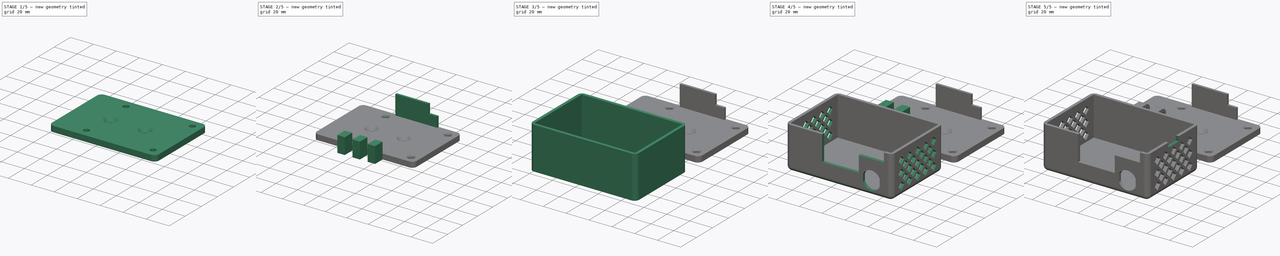
[diagram: build sequence overview — one tinted view per stage of 5, left to right]
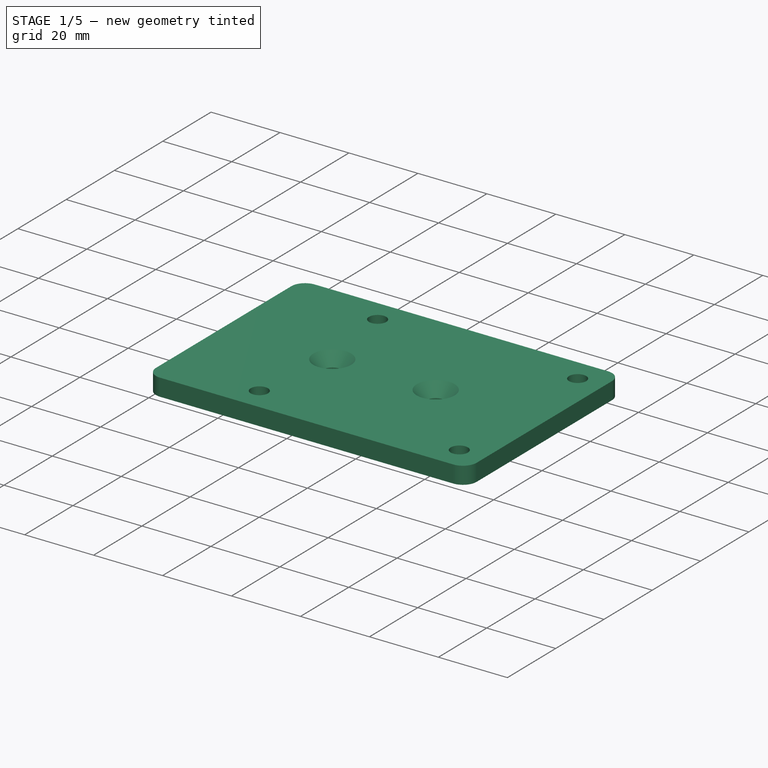
[diagram: stage 1 of 5 — iso view after this stage's code; geometry added in this stage tinted green]
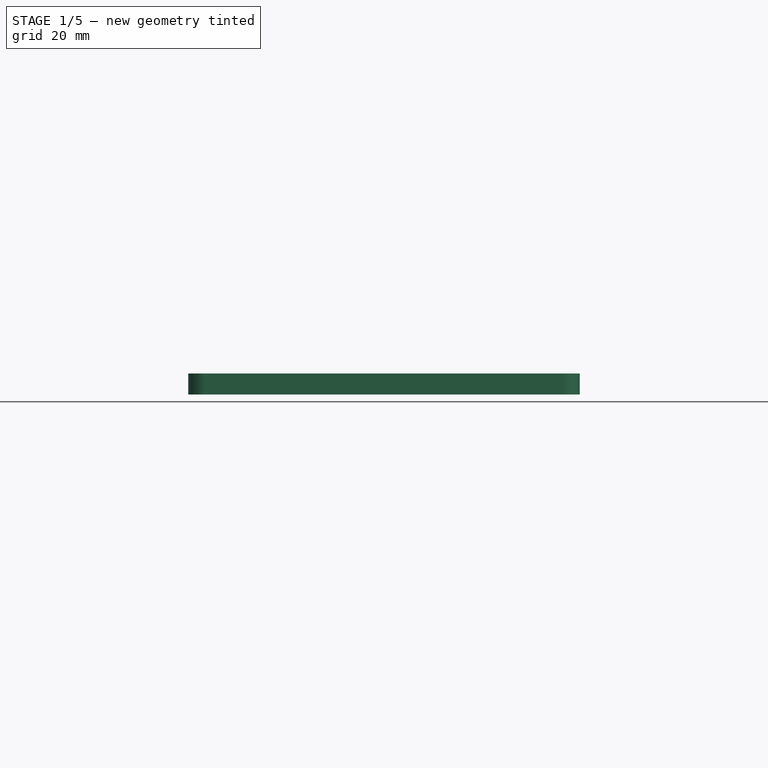
[diagram: stage 1 of 5 — front view after this stage's code; geometry added in this stage tinted green]
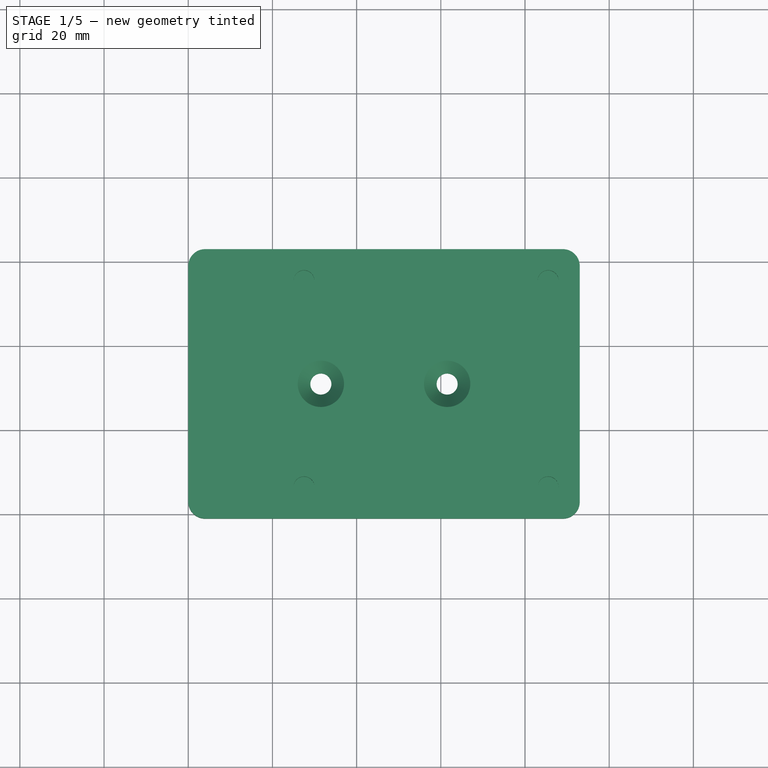
[diagram: stage 1 of 5 — top view after this stage's code; geometry added in this stage tinted green]
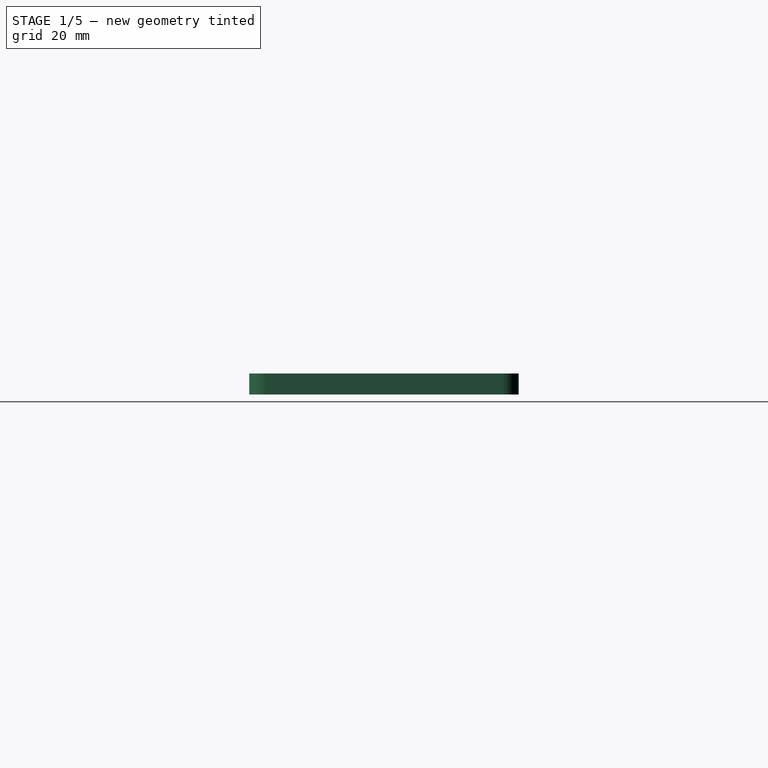
[diagram: stage 1 of 5 — right view after this stage's code; geometry added in this stage tinted green]
FCSTD DOCUMENT  (FreeCAD 0.20R29177 +426 (Git))
Label: GaragePi_Housing
License: All rights reserved
LicenseURL: http://en.wikipedia.org/wiki/All_rights_reserved
objects: Sketcher::SketchObject×16, PartDesign::Pocket×9, PartDesign::Pad×7, PartDesign::Fillet×5, PartDesign::Chamfer×4, PartDesign::Body×2, App::Part×2
note: 68 computed .brp shape members not serialized (recipe doc carries the construction recipe); baked Part::Feature solids carry a one-line shape summary decoded from their .brp

FEATURE [Sketcher::SketchObject] Sketch005
  FullyConstrained = true
  MapMode = 5
  Support = -> [XY_Plane003]
  expr: Constraints[10] = Sketch.Constraints.case_length
  expr: Constraints[11] = Sketch.Constraints.case_width + 15mm
  expr: Constraints[9] = Sketch.Constraints.case_width
  sketch-geometry (4):
    g0: LineSegment StartX=0 StartY=79 StartZ=0 EndX=93 EndY=79 EndZ=0
    g1: LineSegment StartX=93 StartY=79 StartZ=0 EndX=93 EndY=143 EndZ=0
    g2: LineSegment StartX=93 StartY=143 StartZ=0 EndX=0 EndY=143 EndZ=0
    g3: LineSegment StartX=0 StartY=143 StartZ=0 EndX=0 EndY=79 EndZ=0
  constraints (12):
    c: Coincident(g0,g1)
    c: Coincident(g1,g2)
    c: Coincident(g2,g3)
    c: Coincident(g3,g0)
    c: Horizontal(g0)
    c: Horizontal(g2)
    c: Vertical(g1)
    c: Vertical(g3)
    c: PointOnObject(g0,g-2)
    c: DistanceY(g1,g1) = 64
    c: DistanceX(g0,g0) = 93
    c: DistanceY(g-1,g0) = 79
FEATURE [PartDesign::Pad] Pad001
  Direction = (0,0,1)
  Length = 5
  Length2 = 10
  Profile = -> Sketch005
  ReferenceAxis = -> Sketch005 [N_Axis]
  Type = 0
FEATURE [PartDesign::Fillet] Fillet001
  Base = -> Pad001 [Edge5,Edge2,Edge1,Edge8]
  BaseFeature = -> Pad001
  Radius = 4
  SupportTransform = false
  UseAllEdges = false
FEATURE [Sketcher::SketchObject] Sketch006
  FullyConstrained = true
  MapMode = 5
  Placement = pos=(0,0,5) rot=(0,0,1;0rad)
  Support = -> [Fillet001]
  expr: Constraints[1] = Sketch.Constraints.case_width + 15mm + Sketch.Constraints.case_width / 2
  expr: Constraints[3] = (Sketch.Constraints.case_length - .Constraints.hole_gap) / 2
  sketch-geometry (2):
    g0: Circle CenterX=31.5 CenterY=111 CenterZ=0 NormalX=0 NormalY=0 NormalZ=1 AngleXU=0 Radius=2.5
    g1: Circle CenterX=61.5 CenterY=111 CenterZ=0 NormalX=0 NormalY=0 NormalZ=1 AngleXU=0 Radius=2.5
  constraints (6):
    c: Horizontal(g0,g1)
    c: DistanceY(g-1,g0) = 111
    c: DistanceX(g0,g1) = 30  'hole_gap'
    c: DistanceX(g-1,g0) = 31.5
    c: Equal(g0,g1)
    c: Diameter(g0) = 5
FEATURE [PartDesign::Pocket] Pocket004
  BaseFeature = -> Fillet001
  Direction = (0,0,-1)
  Length = 5
  Length2 = 5
  Profile = -> Sketch006
  ReferenceAxis = -> Sketch006 [N_Axis]
  Type = 1
FEATURE [PartDesign::Chamfer] Chamfer
  Angle = 48
  Base = -> Pocket004 [Edge24,Edge23]
  BaseFeature = -> Pocket004
  ChamferType = 2
  FlipDirection = false
  Size = 3
  Size2 = 1
  SupportTransform = false
  UseAllEdges = false
FEATURE [Sketcher::SketchObject] Sketch007
  FullyConstrained = true
  MapMode = 5
  Placement = pos=(0,0,5) rot=(0,0,1;0rad)
  Support = -> [Chamfer]
  expr: Constraints[10] = Sketch.Constraints.case_width + 15mm + (Sketch.Constraints.case_width - Sketch.Constraints.pi_width) / 2 + 3.5mm
  expr: Constraints[11] = Sketch.Constraints.case_length - (Sketch.Constraints.case_length - Sketch.Constraints.pi_length) / 2 - 3.5mm
  sketch-geometry (4):
    g0: Circle CenterX=27.5 CenterY=86.5 CenterZ=0 NormalX=0 NormalY=0 NormalZ=1 AngleXU=0 Radius=2.5
    g1: Circle CenterX=85.5 CenterY=86.5 CenterZ=0 NormalX=0 NormalY=0 NormalZ=1 AngleXU=0 Radius=2.5
    g2: Circle CenterX=85.5 CenterY=135.5 CenterZ=0 NormalX=0 NormalY=0 NormalZ=1 AngleXU=0 Radius=2.5
    g3: Circle CenterX=27.5 CenterY=135.5 CenterZ=0 NormalX=0 NormalY=0 NormalZ=1 AngleXU=0 Radius=2.5
  constraints (12):
    c: Equal(g3,g2)
    c: Equal(g2,g1)
    c: Equal(g1,g0)
    c: Horizontal(g0,g1)
    c: Horizontal(g3,g2)
    c: Vertical(g3,g0)
    c: Vertical(g2,g1)
    c: DistanceY(g0,g3) = 49
    c: DistanceX(g0,g1) = 58
    c: Diameter(g0) = 5
    c: DistanceY(g-1,g0) = 86.5
    c: DistanceX(g-1,g1) = 85.5
FEATURE [PartDesign::Pocket] Pocket005
  BaseFeature = -> Chamfer
  Direction = (0,0,-1)
  Length = 4.2
  Length2 = 5
  Profile = -> Sketch007
  ReferenceAxis = -> Sketch007 [N_Axis]
  Type = 0
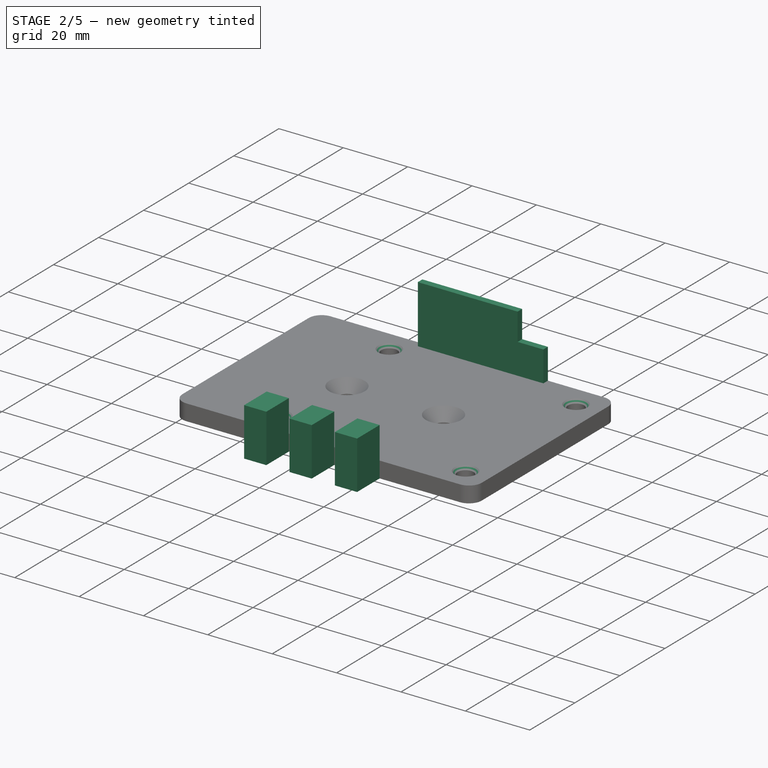
[diagram: stage 2 of 5 — iso view after this stage's code; geometry added in this stage tinted green]
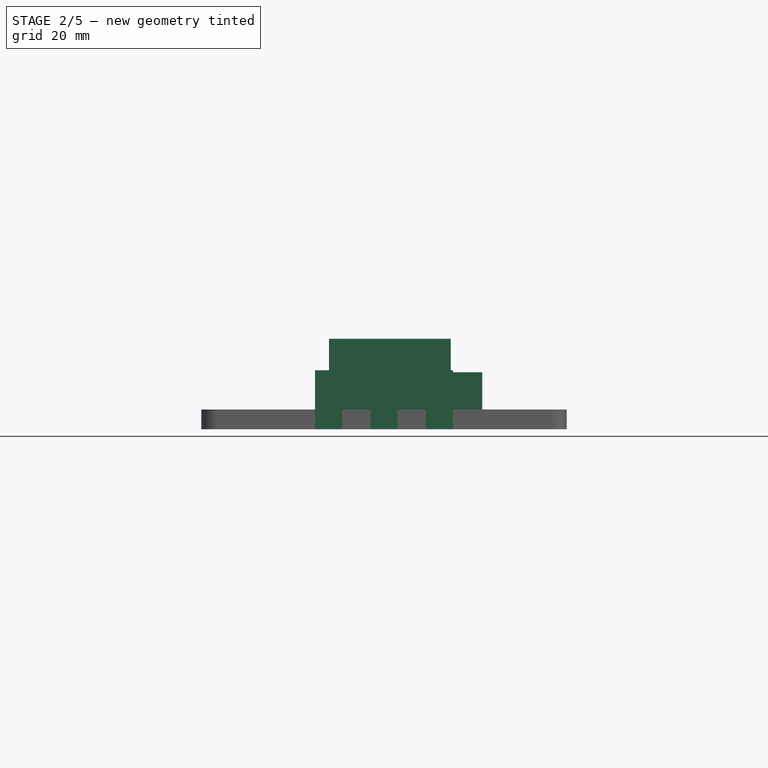
[diagram: stage 2 of 5 — front view after this stage's code; geometry added in this stage tinted green]
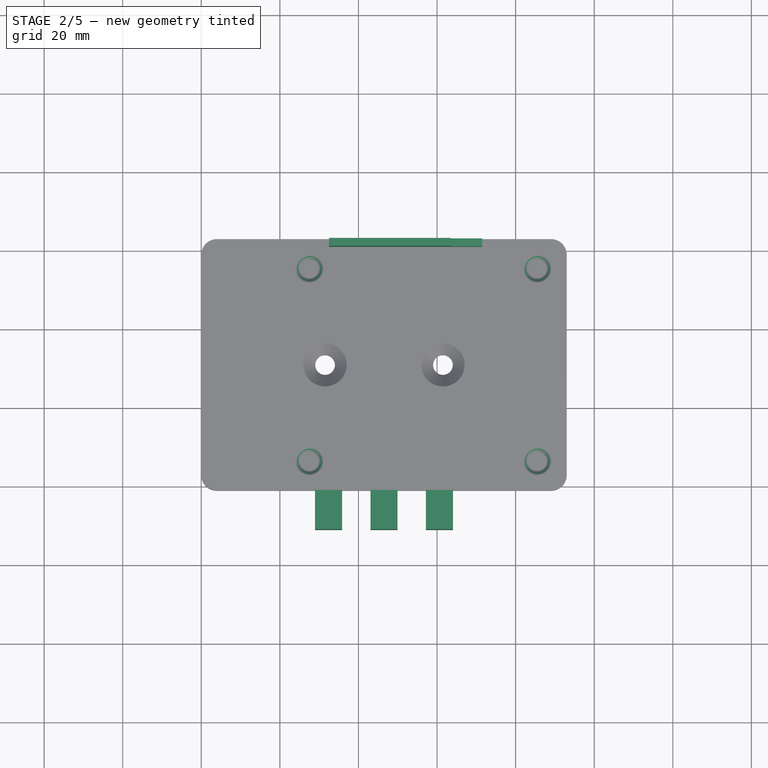
[diagram: stage 2 of 5 — top view after this stage's code; geometry added in this stage tinted green]
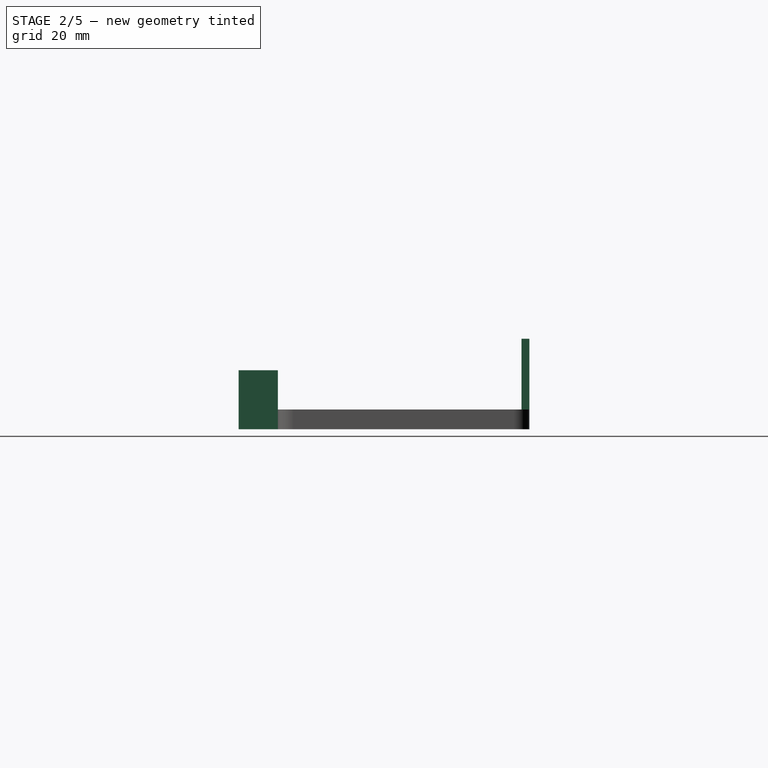
[diagram: stage 2 of 5 — right view after this stage's code; geometry added in this stage tinted green]
FEATURE [PartDesign::Chamfer] Chamfer001
  Angle = 45
  Base = -> Pocket005 [Edge12,Edge14,Edge10,Edge9]
  BaseFeature = -> Pocket005
  ChamferType = 0
  FlipDirection = false
  Size = 1
  Size2 = 1
  SupportTransform = false
  UseAllEdges = false
FEATURE [Sketcher::SketchObject] Sketch008
  FullyConstrained = true
  MapMode = 5
  Placement = pos=(0,0,5) rot=(0,0,1;0rad)
  Support = -> [Chamfer001]
  expr: Constraints[8] = 2 * Sketch.Constraints.case_width + 15mm
  sketch-geometry (4):
    g0: LineSegment StartX=32.5 StartY=143 StartZ=0 EndX=71.5 EndY=143 EndZ=0
    g1: LineSegment StartX=71.5 StartY=143 StartZ=0 EndX=71.5 EndY=141 EndZ=0
    g2: LineSegment StartX=71.5 StartY=141 StartZ=0 EndX=32.5 EndY=141 EndZ=0
    g3: LineSegment StartX=32.5 StartY=141 StartZ=0 EndX=32.5 EndY=143 EndZ=0
  constraints (12):
    c: Coincident(g0,g1)
    c: Coincident(g1,g2)
    c: Coincident(g2,g3)
    c: Coincident(g3,g0)
    c: Horizontal(g0)
    c: Horizontal(g2)
    c: Vertical(g1)
    c: Vertical(g3)
    c: DistanceY(g-1,g0) = 143
    c: DistanceY(g3,g3) = 2
    c: DistanceX(g-1,g0) = 32.5
    c: DistanceX(g0,g0) = 39
FEATURE [PartDesign::Pad] Pad002
  BaseFeature = -> Chamfer001
  Direction = (0,0,1)
  Length = 2
  Length2 = 10
  Profile = -> Sketch008
  ReferenceAxis = -> Sketch008 [N_Axis]
  Type = 0
FEATURE [Sketcher::SketchObject] Sketch009
  FullyConstrained = true
  MapMode = 5
  Placement = pos=(0,0,7) rot=(0,0,1;0rad)
  Support = -> [Pad002]
  expr: Constraints[8] = Sketch.Constraints.case_width * 2 + 15mm
  sketch-geometry (4):
    g0: LineSegment StartX=32.5 StartY=143 StartZ=0 EndX=63.5 EndY=143 EndZ=0
    g1: LineSegment StartX=63.5 StartY=143 StartZ=0 EndX=63.5 EndY=141 EndZ=0
    g2: LineSegment StartX=63.5 StartY=141 StartZ=0 EndX=32.5 EndY=141 EndZ=0
    g3: LineSegment StartX=32.5 StartY=141 StartZ=0 EndX=32.5 EndY=143 EndZ=0
  constraints (12):
    c: Coincident(g0,g1)
    c: Coincident(g1,g2)
    c: Coincident(g2,g3)
    c: Coincident(g3,g0)
    c: Horizontal(g0)
    c: Horizontal(g2)
    c: Vertical(g1)
    c: Vertical(g3)
    c: DistanceY(g-1,g0) = 143
    c: DistanceY(g3,g3) = 2
    c: DistanceX(g2,g2) = 31
    c: DistanceX(g-1,g0) = 32.5
FEATURE [PartDesign::Pad] Pad003
  BaseFeature = -> Pad002
  Direction = (0,0,1)
  Length = 16
  Length2 = 10
  Profile = -> Sketch009
  ReferenceAxis = -> Sketch009 [N_Axis]
  Type = 0
FEATURE [Sketcher::SketchObject] Sketch010
  FullyConstrained = true
  MapMode = 5
  Support = -> [XY_Plane003]
  expr: Constraints[30] = Sketch.Constraints.case_width + 15mm
  expr: Constraints[35] = (Sketch.Constraints.case_length - .Constraints.pin_length) / 2
  sketch-geometry (12):
    g0: LineSegment StartX=28.95 StartY=79 StartZ=0 EndX=35.85 EndY=79 EndZ=0
    g1: LineSegment StartX=35.85 StartY=79 StartZ=0 EndX=35.85 EndY=69 EndZ=0
    g2: LineSegment StartX=35.85 StartY=69 StartZ=0 EndX=28.95 EndY=69 EndZ=0
    g3: LineSegment StartX=28.95 StartY=69 StartZ=0 EndX=28.95 EndY=79 EndZ=0
    g4: LineSegment StartX=43.05 StartY=79 StartZ=0 EndX=49.95 EndY=79 EndZ=0
    g5: LineSegment StartX=49.95 StartY=79 StartZ=0 EndX=49.95 EndY=69 EndZ=0
    g6: LineSegment StartX=49.95 StartY=69 StartZ=0 EndX=43.05 EndY=69 EndZ=0
    g7: LineSegment StartX=43.05 StartY=69 StartZ=0 EndX=43.05 EndY=79 EndZ=0
    g8: LineSegment StartX=57.15 StartY=79 StartZ=0 EndX=64.05 EndY=79 EndZ=0
    g9: LineSegment StartX=64.05 StartY=79 StartZ=0 EndX=64.05 EndY=69 EndZ=0
    g10: LineSegment StartX=64.05 StartY=69 StartZ=0 EndX=57.15 EndY=69 EndZ=0
    g11: LineSegment StartX=57.15 StartY=69 StartZ=0 EndX=57.15 EndY=79 EndZ=0
  constraints (36):
    c: Coincident(g0,g1)
    c: Coincident(g1,g2)
    c: Coincident(g2,g3)
    c: Coincident(g3,g0)
    c: Horizontal(g0)
    c: Horizontal(g2)
    c: Vertical(g1)
    c: Vertical(g3)
    c: Coincident(g4,g5)
    c: Coincident(g5,g6)
    c: Coincident(g6,g7)
    c: Coincident(g7,g4)
    c: Horizontal(g4)
    c: Horizontal(g6)
    c: Vertical(g5)
    c: Vertical(g7)
    c: Coincident(g8,g9)
    c: Coincident(g9,g10)
    c: Coincident(g10,g11)
    c: Coincident(g11,g8)
    c: Horizontal(g8)
    c: Horizontal(g10)
    c: Vertical(g9)
    c: Vertical(g11)
    c: Equal(g3,g7)
    c: Equal(g7,g11)
    c: Equal(g8,g4)
    c: Equal(g4,g0)
    c: Horizontal(g0,g4)
    c: Horizontal(g4,g8)
    c: DistanceY(g-1,g0) = 79
    c: DistanceX(g0,g8) = 35.1  'pin_length'
    c: DistanceX(g0,g0) = 6.9
    c: DistanceX(g0,g4) = 7.2
    c: DistanceY(g3,g3) = 10
    c: DistanceX(g-1,g0) = 28.95
FEATURE [PartDesign::Pad] Pad004
  BaseFeature = -> Pad003
  Direction = (0,0,1)
  Length = 15
  Length2 = 10
  Profile = -> Sketch010
  ReferenceAxis = -> Sketch010 [N_Axis]
  Type = 0
FEATURE [Sketcher::SketchObject] Sketch014
  FullyConstrained = true
  MapMode = 5
  Placement = pos=(0,0,7) rot=(0,0,1;0rad)
  expr: Constraints[8] = Sketch.Constraints.case_width * 2 + 15mm
  sketch-geometry (4):
    g0: LineSegment StartX=63.5 StartY=143 StartZ=0 EndX=71.5 EndY=143 EndZ=0
    g1: LineSegment StartX=71.5 StartY=143 StartZ=0 EndX=71.5 EndY=141 EndZ=0
    g2: LineSegment StartX=71.5 StartY=141 StartZ=0 EndX=63.5 EndY=141 EndZ=0
    g3: LineSegment StartX=63.5 StartY=141 StartZ=0 EndX=63.5 EndY=143 EndZ=0
  constraints (12):
    c: Coincident(g0,g1)
    c: Coincident(g1,g2)
    c: Coincident(g2,g3)
    c: Coincident(g3,g0)
    c: Horizontal(g0)
    c: Horizontal(g2)
    c: Vertical(g1)
    c: Vertical(g3)
    c: DistanceY(g-1,g0) = 143
    c: DistanceY(g3,g3) = 2
    c: DistanceX(g-1,g0) = 63.5
    c: DistanceX(g0,g0) = 8
FEATURE [PartDesign::Pad] Pad006
  BaseFeature = -> Pad004
  Direction = (0,0,1)
  Length = 7.5
  Length2 = 10
  Profile = -> Sketch014
  ReferenceAxis = -> Sketch014 [N_Axis]
  Type = 0
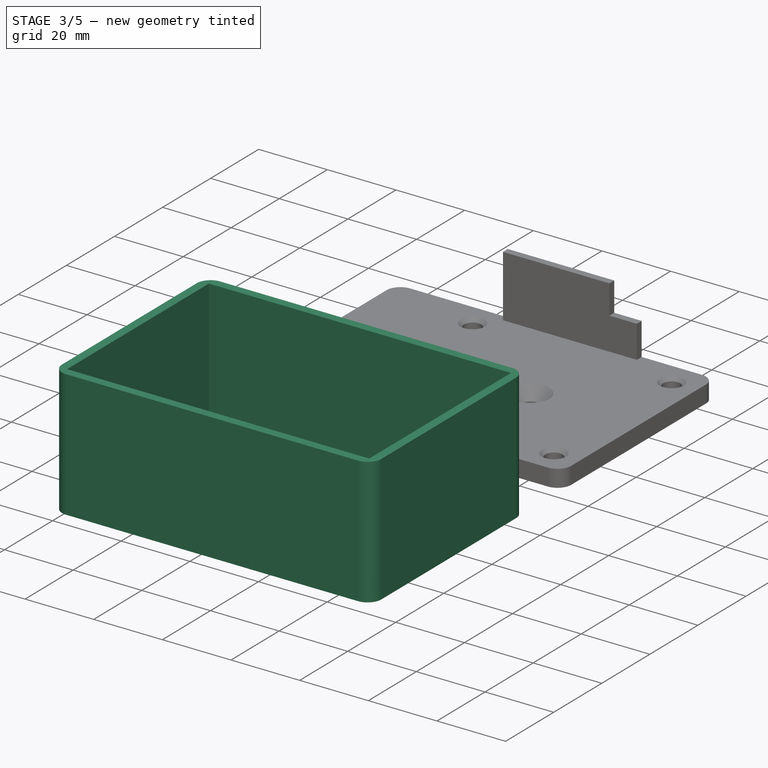
[diagram: stage 3 of 5 — iso view after this stage's code; geometry added in this stage tinted green]
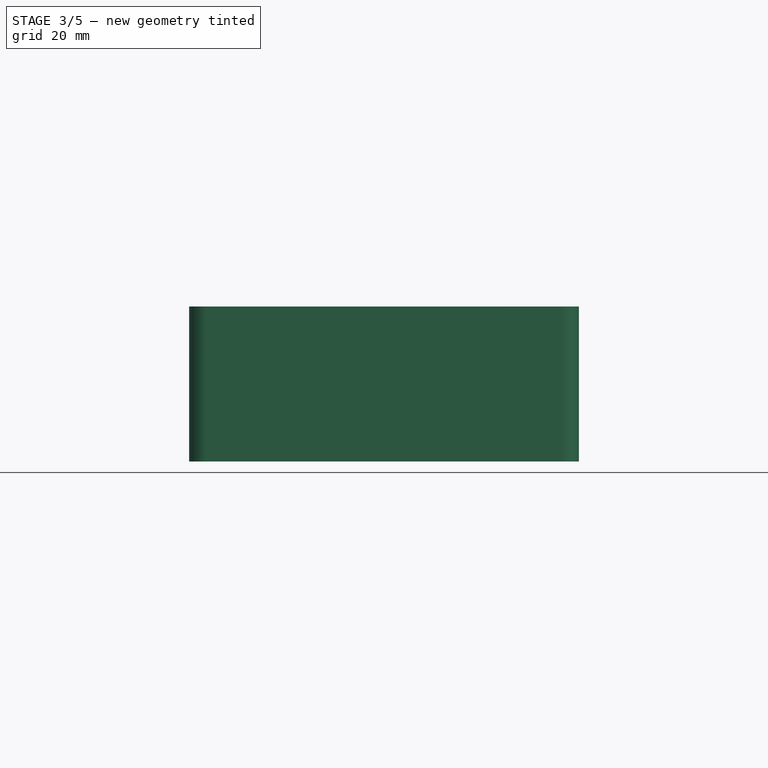
[diagram: stage 3 of 5 — front view after this stage's code; geometry added in this stage tinted green]
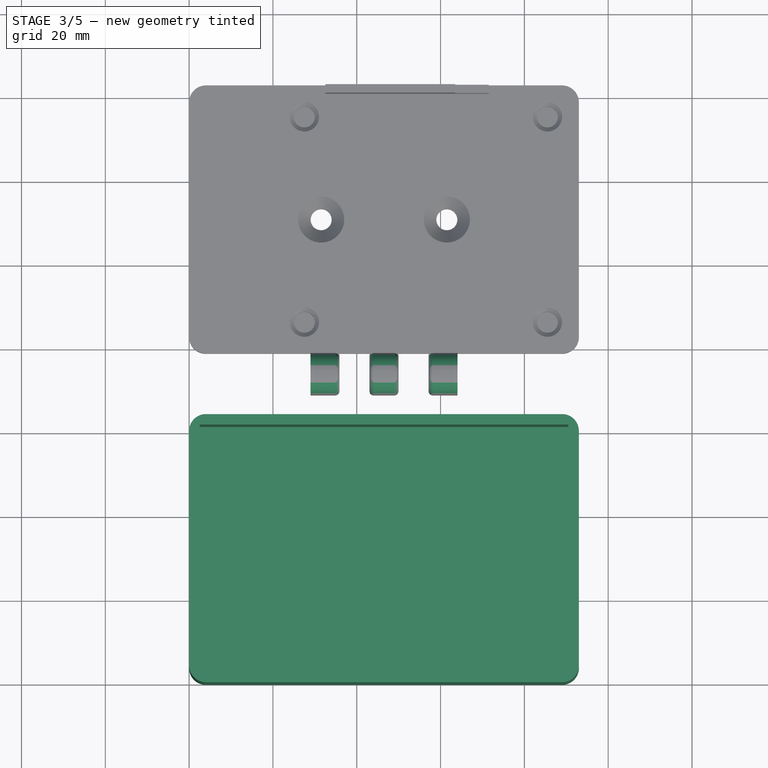
[diagram: stage 3 of 5 — top view after this stage's code; geometry added in this stage tinted green]
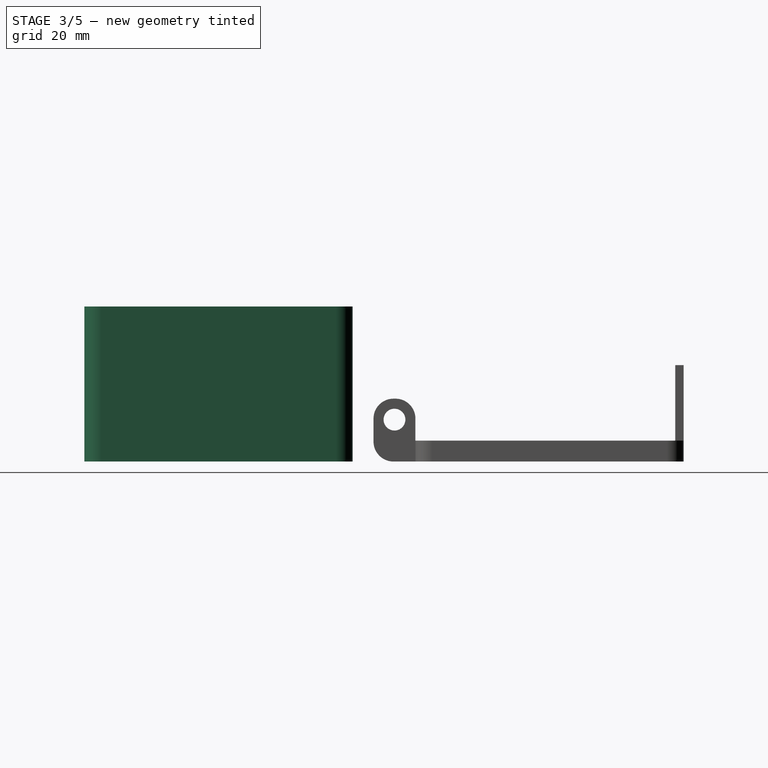
[diagram: stage 3 of 5 — right view after this stage's code; geometry added in this stage tinted green]
FEATURE [Sketcher::SketchObject] Sketch
  FullyConstrained = true
  MapMode = 5
  Support = -> [XY_Plane001]
  expr: .Constraints.case_length = .Constraints.pi_length + 8mm
  expr: .Constraints.case_width = .Constraints.pi_width + 8mm
  expr: Constraints[21] = (.Constraints.case_length - .Constraints.pi_length) / 2
  expr: Constraints[22] = (.Constraints.case_width - .Constraints.pi_width) / 2
  sketch-geometry (8):
    g0: LineSegment StartX=3.775e-13 StartY=4 StartZ=0 EndX=3.277e-13 EndY=60 EndZ=0
    g1: LineSegment StartX=4 StartY=3.775e-13 StartZ=0 EndX=89 EndY=3.277e-13 EndZ=0
    g2: LineSegment StartX=93 StartY=4 StartZ=0 EndX=93 EndY=60 EndZ=0
    g3: LineSegment StartX=4 StartY=64 StartZ=0 EndX=89 EndY=64 EndZ=0
    g4: ArcOfCircle CenterX=4 CenterY=60 CenterZ=0 NormalX=0 NormalY=0 NormalZ=1 AngleXU=0 Radius=4 StartAngle=1.5708 EndAngle=3.14159
    g5: ArcOfCircle CenterX=89 CenterY=60 CenterZ=0 NormalX=0 NormalY=0 NormalZ=1 AngleXU=0 Radius=4 StartAngle=7.46e-14 EndAngle=1.5708
    g6: ArcOfCircle CenterX=89 CenterY=4 CenterZ=0 NormalX=0 NormalY=0 NormalZ=1 AngleXU=0 Radius=4 StartAngle=4.71239 EndAngle=6.28319
    g7: ArcOfCircle CenterX=4 CenterY=4 CenterZ=0 NormalX=0 NormalY=0 NormalZ=1 AngleXU=0 Radius=4 StartAngle=3.14159 EndAngle=4.71239
  constraints (28):
    c: PointOnObject(g0,g-2)
    c: PointOnObject(g0,g-2)
    c: PointOnObject(g1,g-1)
    c: PointOnObject(g1,g-1)
    c: Vertical(g2)
    c: Horizontal(g3)
    c: Coincident(g4,g0)
    c: Coincident(g4,g3)
    c: Coincident(g5,g3)
    c: Coincident(g5,g2)
    c: Coincident(g6,g2)
    c: Coincident(g6,g1)
    c: Coincident(g7,g1)
    c: Coincident(g7,g0)
    c: DistanceY(g1,g3) = 64  'case_width'
    c: DistanceX(g0,g2) = 93  'case_length'
    c: Equal(g0,g2)
    c: Equal(g3,g1)
    c: DistanceY(g0,g0) = 56  'pi_width'
    c: Horizontal(g0,g2)
    c: DistanceX(g1,g1) = 85  'pi_length'
    c: DistanceX(g-1,g1) = 4
    c: DistanceY(g-1,g0) = 4
    c: Vertical(g1,g3)
    c: Equal(g4,g5)
    c: Equal(g5,g6)
    c: Equal(g6,g7)
    c: Radius(g4) = 4
FEATURE [PartDesign::Pad] Pad
  Direction = (0,0,1)
  Length = 37
  Length2 = 10
  Profile = -> Sketch
  ReferenceAxis = -> Sketch [N_Axis]
  Type = 0
FEATURE [Sketcher::SketchObject] Sketch001
  FullyConstrained = true
  MapMode = 5
  Placement = pos=(0,0,37) rot=(0,0,1;0rad)
  Support = -> [Pad]
  expr: Constraints[10] = (Sketch.Constraints.case_length - .Constraints.case_inner_length) / 2
  expr: Constraints[11] = (Sketch.Constraints.case_width - .Constraints.case_inner_width) / 2
  sketch-geometry (4):
    g0: LineSegment StartX=2.5 StartY=2.5 StartZ=0 EndX=90.5 EndY=2.5 EndZ=0
    g1: LineSegment StartX=90.5 StartY=2.5 StartZ=0 EndX=90.5 EndY=61.5 EndZ=0
    g2: LineSegment StartX=90.5 StartY=61.5 StartZ=0 EndX=2.5 EndY=61.5 EndZ=0
    g3: LineSegment StartX=2.5 StartY=61.5 StartZ=0 EndX=2.5 EndY=2.5 EndZ=0
  constraints (12):
    c: Coincident(g0,g1)
    c: Coincident(g1,g2)
    c: Coincident(g2,g3)
    c: Coincident(g3,g0)
    c: Horizontal(g0)
    c: Horizontal(g2)
    c: Vertical(g1)
    c: Vertical(g3)
    c: DistanceX(g0,g0) = 88  'case_inner_length'
    c: DistanceY(g3,g3) = 59  'case_inner_width'
    c: DistanceX(g-1,g0) = 2.5
    c: DistanceY(g-1,g0) = 2.5
FEATURE [PartDesign::Pocket] Pocket
  BaseFeature = -> Pad
  Direction = (0,0,-1)
  Length = 34
  Length2 = 5
  Profile = -> Sketch001
  ReferenceAxis = -> Sketch001 [N_Axis]
  Type = 0
FEATURE [PartDesign::Body] Body
  Group = -> [Sketch,Pad,Sketch001,Pocket,Sketch002,Pocket001,Sketch003,Pocket002,Sketch004,Pocket003,Fillet,Sketch012,Pad005,Fillet003,Chamfer003,Chamfer004,Sketch013,Pocket007,Sketch015,Pocket008]
  Origin = -> Origin001
  Tip = -> Pocket008
FEATURE [App::Part] Part
  Group = -> [Body]
  Origin = -> Origin
FEATURE [PartDesign::Fillet] Fillet004
  Base = -> Pad006 [Edge64,Edge58,Edge52,Edge103,Edge110,Edge117,Edge130,Edge129,Edge128]
  BaseFeature = -> Pad006
  Radius = 4.75
  SupportTransform = false
  UseAllEdges = false
FEATURE [Sketcher::SketchObject] Sketch016
  FullyConstrained = true
  MapMode = 5
  Placement = pos=(28.95,0,0) rot=(0.57735,-0.57735,-0.57735;2.0944rad)
  Support = -> [Fillet004]
  expr: Constraints[0] = Sketch.Constraints.case_width + 10mm
  sketch-geometry (1):
    g0: Circle CenterX=-74 CenterY=10 CenterZ=0 NormalX=0 NormalY=0 NormalZ=1 AngleXU=0 Radius=2.6
  constraints (3):
    c: DistanceX(g0,g-1) = 74
    c: DistanceY(g-1,g0) = 10
    c: Diameter(g0) = 5.2
FEATURE [PartDesign::Pocket] Pocket009
  BaseFeature = -> Fillet004
  Direction = (1,0,0)
  Length = 5
  Length2 = 5
  Profile = -> Sketch016
  ReferenceAxis = -> Sketch016 [N_Axis]
  Type = 1
FEATURE [PartDesign::Fillet] Fillet005
  Base = -> Pocket009 [Edge110,Edge124,Edge137,Edge5]
  BaseFeature = -> Pocket009
  Radius = 1
  SupportTransform = false
  UseAllEdges = false
FEATURE [PartDesign::Body] Body001
  Group = -> [Sketch005,Pad001,Fillet001,Sketch006,Pocket004,Chamfer,Sketch007,Pocket005,Chamfer001,Sketch008,Pad002,Sketch009,Pad003,Sketch010,Pad004,Sketch014,Pad006,Fillet004,Sketch016,Pocket009,Fillet005]
  Origin = -> Origin003
  Tip = -> Fillet005
FEATURE [App::Part] Part001
  Group = -> [Body001]
  Origin = -> Origin002
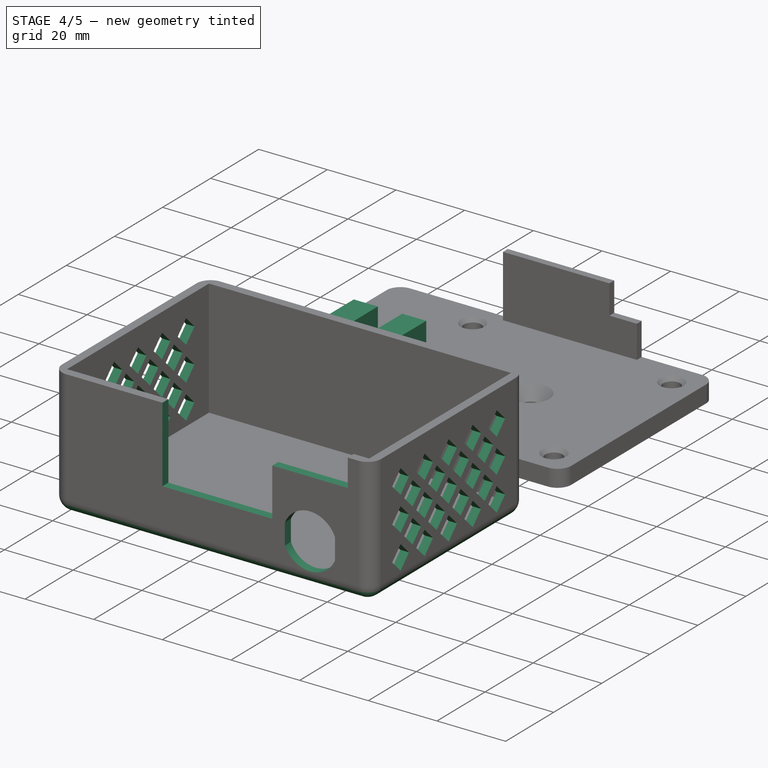
[diagram: stage 4 of 5 — iso view after this stage's code; geometry added in this stage tinted green]
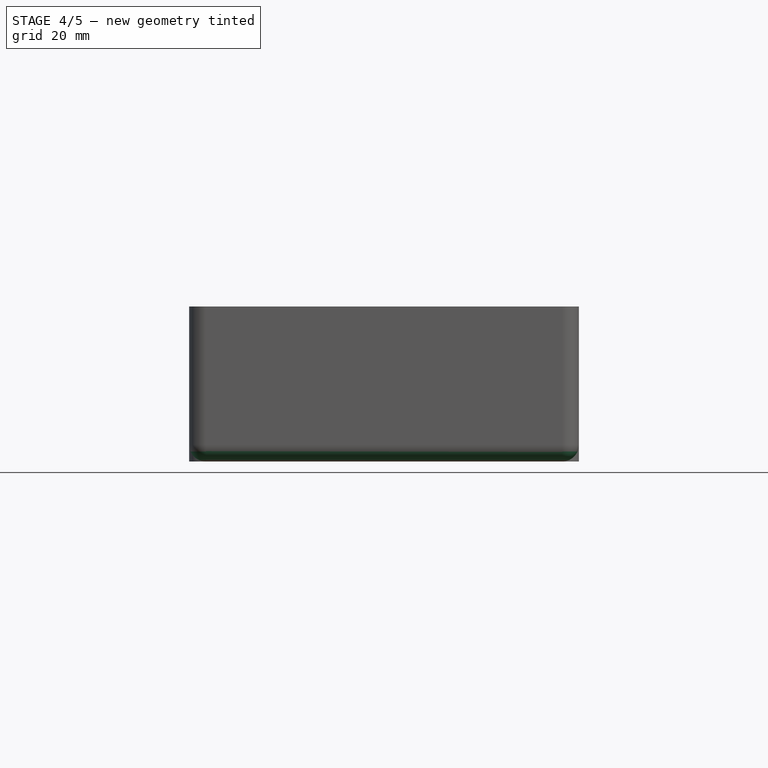
[diagram: stage 4 of 5 — front view after this stage's code; geometry added in this stage tinted green]
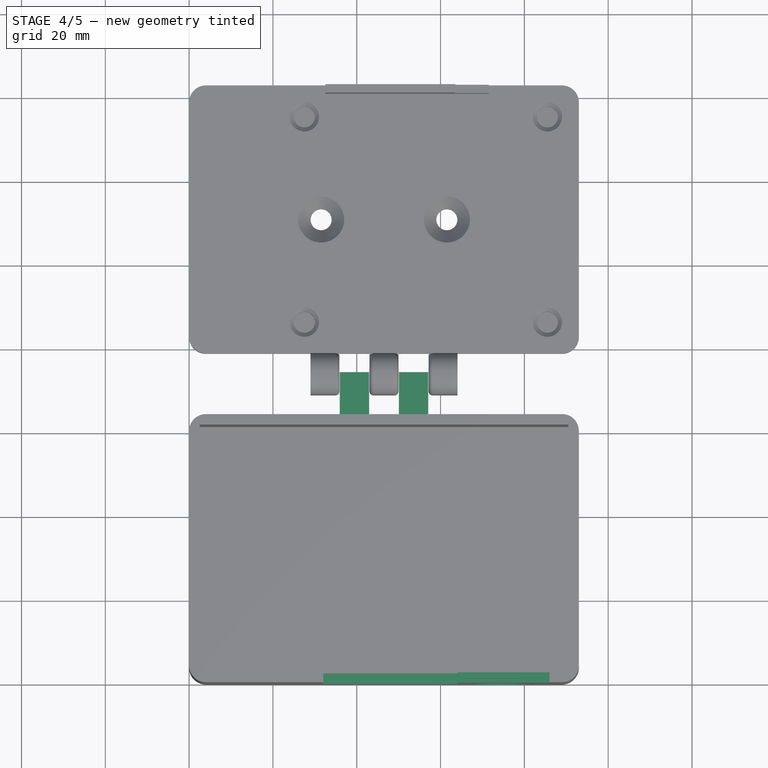
[diagram: stage 4 of 5 — top view after this stage's code; geometry added in this stage tinted green]
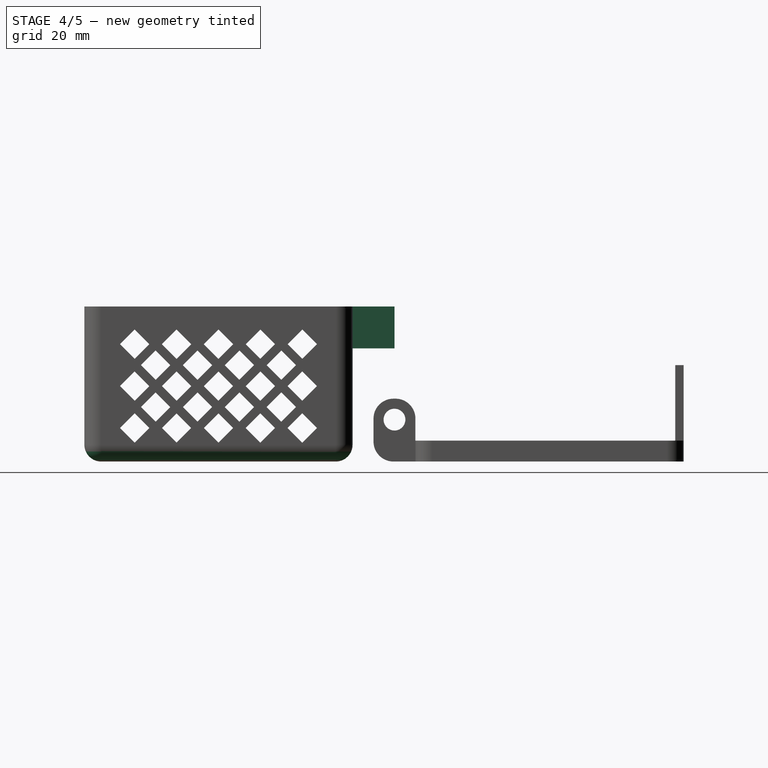
[diagram: stage 4 of 5 — right view after this stage's code; geometry added in this stage tinted green]
FEATURE [Sketcher::SketchObject] Sketch002
  FullyConstrained = true
  MapMode = 5
  Placement = pos=(3.81e-13,0,0) rot=(0.57735,-0.57735,-0.57735;2.0944rad)
  Support = -> [Pocket]
  expr: .Constraints.hole_gap = .Constraints.hole_width / 4
  expr: Constraints[218] = (Sketch.Constraints.case_width - .Constraints.hole_width) / 2
  expr: Constraints[220] = .Constraints.hole_gap
  expr: Constraints[221] = .Constraints.hole_gap
  expr: Constraints[222] = .Constraints.hole_gap
  expr: Constraints[223] = .Constraints.hole_gap
  expr: Constraints[339] = .Constraints.hole_gap / 2
  expr: Constraints[340] = .Constraints.hole_gap / 2
  expr: Constraints[341] = .Constraints.hole_gap
  expr: Constraints[342] = .Constraints.hole_gap
  expr: Constraints[343] = .Constraints.hole_gap
  expr: Constraints[344] = .Constraints.hole_gap
  sketch-geometry (115):
    g0: LineSegment StartX=-52 StartY=4.5 StartZ=0 EndX=-48.5 EndY=8 EndZ=0
    g1: LineSegment StartX=-48.5 StartY=8 StartZ=0 EndX=-52 EndY=11.5 EndZ=0
    g2: LineSegment StartX=-52 StartY=11.5 StartZ=0 EndX=-55.5 EndY=8 EndZ=0
    g3: LineSegment StartX=-55.5 StartY=8 StartZ=0 EndX=-52 EndY=4.5 EndZ=0
    g4: Circle CenterX=-52 CenterY=8 CenterZ=0 NormalX=0 NormalY=0 NormalZ=1 AngleXU=0 Radius=3.5
    g5: LineSegment StartX=-52 StartY=14.5 StartZ=0 EndX=-48.5 EndY=18 EndZ=0
    g6: LineSegment StartX=-48.5 StartY=18 StartZ=0 EndX=-52 EndY=21.5 EndZ=0
    g7: LineSegment StartX=-52 StartY=21.5 StartZ=0 EndX=-55.5 EndY=18 EndZ=0
    g8: LineSegment StartX=-55.5 StartY=18 StartZ=0 EndX=-52 EndY=14.5 EndZ=0
    g9: Circle CenterX=-52 CenterY=18 CenterZ=0 NormalX=0 NormalY=0 NormalZ=1 AngleXU=0 Radius=3.5
    g10: LineSegment StartX=-52 StartY=24.5 StartZ=0 EndX=-48.5 EndY=28 EndZ=0
    g11: LineSegment StartX=-48.5 StartY=28 StartZ=0 EndX=-52 EndY=31.5 EndZ=0
    g12: LineSegment StartX=-52 StartY=31.5 StartZ=0 EndX=-55.5 EndY=28 EndZ=0
    g13: LineSegment StartX=-55.5 StartY=28 StartZ=0 EndX=-52 EndY=24.5 EndZ=0
    g14: Circle CenterX=-52 CenterY=28 CenterZ=0 NormalX=0 NormalY=0 NormalZ=1 AngleXU=0 Radius=3.5
    g15: LineSegment StartX=-42 StartY=24.5 StartZ=0 EndX=-38.5 EndY=28 EndZ=0
    g16: LineSegment StartX=-38.5 StartY=28 StartZ=0 EndX=-42 EndY=31.5 EndZ=0
    g17: LineSegment StartX=-42 StartY=31.5 StartZ=0 EndX=-45.5 EndY=28 EndZ=0
    g18: LineSegment StartX=-45.5 StartY=28 StartZ=0 EndX=-42 EndY=24.5 EndZ=0
    g19: Circle CenterX=-42 CenterY=28 CenterZ=0 NormalX=0 NormalY=0 NormalZ=1 AngleXU=0 Radius=3.5
    g20: LineSegment StartX=-42 StartY=14.5 StartZ=0 EndX=-38.5 EndY=18 EndZ=0
    g21: LineSegment StartX=-38.5 StartY=18 StartZ=0 EndX=-42 EndY=21.5 EndZ=0
    g22: LineSegment StartX=-42 StartY=21.5 StartZ=0 EndX=-45.5 EndY=18 EndZ=0
    g23: LineSegment StartX=-45.5 StartY=18 StartZ=0 EndX=-42 EndY=14.5 EndZ=0
    g24: Circle CenterX=-42 CenterY=18 CenterZ=0 NormalX=0 NormalY=0 NormalZ=1 AngleXU=0 Radius=3.5
    g25: LineSegment StartX=-42 StartY=4.5 StartZ=0 EndX=-38.5 EndY=8 EndZ=0
    g26: LineSegment StartX=-38.5 StartY=8 StartZ=0 EndX=-42 EndY=11.5 EndZ=0
    g27: LineSegment StartX=-42 StartY=11.5 StartZ=0 EndX=-45.5 EndY=8 EndZ=0
    g28: LineSegment StartX=-45.5 StartY=8 StartZ=0 EndX=-42 EndY=4.5 EndZ=0
    g29: Circle CenterX=-42 CenterY=8 CenterZ=0 NormalX=0 NormalY=0 NormalZ=1 AngleXU=0 Radius=3.5
    g30: LineSegment StartX=-32 StartY=24.5 StartZ=0 EndX=-28.5 EndY=28 EndZ=0
    g31: LineSegment StartX=-28.5 StartY=28 StartZ=0 EndX=-32 EndY=31.5 EndZ=0
    g32: LineSegment StartX=-32 StartY=31.5 StartZ=0 EndX=-35.5 EndY=28 EndZ=0
    g33: LineSegment StartX=-35.5 StartY=28 StartZ=0 EndX=-32 EndY=24.5 EndZ=0
    g34: Circle CenterX=-32 CenterY=28 CenterZ=0 NormalX=0 NormalY=0 NormalZ=1 AngleXU=0 Radius=3.5
    g35: LineSegment StartX=-32 StartY=14.5 StartZ=0 EndX=-28.5 EndY=18 EndZ=0
    g36: LineSegment StartX=-28.5 StartY=18 StartZ=0 EndX=-32 EndY=21.5 EndZ=0
    g37: LineSegment StartX=-32 StartY=21.5 StartZ=0 EndX=-35.5 EndY=18 EndZ=0
    g38: LineSegment StartX=-35.5 StartY=18 StartZ=0 EndX=-32 EndY=14.5 EndZ=0
    g39: Circle CenterX=-32 CenterY=18 CenterZ=0 NormalX=0 NormalY=0 NormalZ=1 AngleXU=0 Radius=3.5
    g40: LineSegment StartX=-32 StartY=4.5 StartZ=0 EndX=-28.5 EndY=8 EndZ=0
    g41: LineSegment StartX=-28.5 StartY=8 StartZ=0 EndX=-32 EndY=11.5 EndZ=0
    g42: LineSegment StartX=-32 StartY=11.5 StartZ=0 EndX=-35.5 EndY=8 EndZ=0
    g43: LineSegment StartX=-35.5 StartY=8 StartZ=0 EndX=-32 EndY=4.5 EndZ=0
    g44: Circle CenterX=-32 CenterY=8 CenterZ=0 NormalX=0 NormalY=0 NormalZ=1 AngleXU=0 Radius=3.5
    g45: LineSegment StartX=-22 StartY=24.5 StartZ=0 EndX=-18.5 EndY=28 EndZ=0
    g46: LineSegment StartX=-18.5 StartY=28 StartZ=0 EndX=-22 EndY=31.5 EndZ=0
    g47: LineSegment StartX=-22 StartY=31.5 StartZ=0 EndX=-25.5 EndY=28 EndZ=0
    g48: LineSegment StartX=-25.5 StartY=28 StartZ=0 EndX=-22 EndY=24.5 EndZ=0
    g49: Circle CenterX=-22 CenterY=28 CenterZ=0 NormalX=0 NormalY=0 NormalZ=1 AngleXU=0 Radius=3.5
    g50: LineSegment StartX=-22 StartY=14.5 StartZ=0 EndX=-18.5 EndY=18 EndZ=0
    g51: LineSegment StartX=-18.5 StartY=18 StartZ=0 EndX=-22 EndY=21.5 EndZ=0
    g52: LineSegment StartX=-22 StartY=21.5 StartZ=0 EndX=-25.5 EndY=18 EndZ=0
    g53: LineSegment StartX=-25.5 StartY=18 StartZ=0 EndX=-22 EndY=14.5 EndZ=0
    g54: Circle CenterX=-22 CenterY=18 CenterZ=0 NormalX=0 NormalY=0 NormalZ=1 AngleXU=0 Radius=3.5
    g55: LineSegment StartX=-22 StartY=4.5 StartZ=0 EndX=-18.5 EndY=8 EndZ=0
    g56: LineSegment StartX=-18.5 StartY=8 StartZ=0 EndX=-22 EndY=11.5 EndZ=0
    g57: LineSegment StartX=-22 StartY=11.5 StartZ=0 EndX=-25.5 EndY=8 EndZ=0
    g58: LineSegment StartX=-25.5 StartY=8 StartZ=0 EndX=-22 EndY=4.5 EndZ=0
    g59: Circle CenterX=-22 CenterY=8 CenterZ=0 NormalX=0 NormalY=0 NormalZ=1 AngleXU=0 Radius=3.5
    g60: LineSegment StartX=-12 StartY=24.5 StartZ=0 EndX=-8.5 EndY=28 EndZ=0
    g61: LineSegment StartX=-8.5 StartY=28 StartZ=0 EndX=-12 EndY=31.5 EndZ=0
    g62: LineSegment StartX=-12 StartY=31.5 StartZ=0 EndX=-15.5 EndY=28 EndZ=0
    g63: LineSegment StartX=-15.5 StartY=28 StartZ=0 EndX=-12 EndY=24.5 EndZ=0
    g64: Circle CenterX=-12 CenterY=28 CenterZ=0 NormalX=0 NormalY=0 NormalZ=1 AngleXU=0 Radius=3.5
    g65: LineSegment StartX=-12 StartY=14.5 StartZ=0 EndX=-8.5 EndY=18 EndZ=0
    g66: LineSegment StartX=-8.5 StartY=18 StartZ=0 EndX=-12 EndY=21.5 EndZ=0
    g67: LineSegment StartX=-12 StartY=21.5 StartZ=0 EndX=-15.5 EndY=18 EndZ=0
    g68: LineSegment StartX=-15.5 StartY=18 StartZ=0 EndX=-12 EndY=14.5 EndZ=0
    g69: Circle CenterX=-12 CenterY=18 CenterZ=0 NormalX=0 NormalY=0 NormalZ=1 AngleXU=0 Radius=3.5
    g70: LineSegment StartX=-12 StartY=4.5 StartZ=0 EndX=-8.5 EndY=8 EndZ=0
    g71: LineSegment StartX=-8.5 StartY=8 StartZ=0 EndX=-12 EndY=11.5 EndZ=0
    g72: LineSegment StartX=-12 StartY=11.5 StartZ=0 EndX=-15.5 EndY=8 EndZ=0
    g73: LineSegment StartX=-15.5 StartY=8 StartZ=0 EndX=-12 EndY=4.5 EndZ=0
    g74: Circle CenterX=-12 CenterY=8 CenterZ=0 NormalX=0 NormalY=0 NormalZ=1 AngleXU=0 Radius=3.5
    g75: LineSegment StartX=-47 StartY=9.5 StartZ=0 EndX=-43.5 EndY=13 EndZ=0
    g76: LineSegment StartX=-43.5 StartY=13 StartZ=0 EndX=-47 EndY=16.5 EndZ=0
    g77: LineSegment StartX=-47 StartY=16.5 StartZ=0 EndX=-50.5 EndY=13 EndZ=0
    g78: LineSegment StartX=-50.5 StartY=13 StartZ=0 EndX=-47 EndY=9.5 EndZ=0
    g79: Circle CenterX=-47 CenterY=13 CenterZ=0 NormalX=0 NormalY=0 NormalZ=1 AngleXU=0 Radius=3.5
    g80: LineSegment StartX=-37 StartY=9.5 StartZ=0 EndX=-33.5 EndY=13 EndZ=0
    g81: LineSegment StartX=-33.5 StartY=13 StartZ=0 EndX=-37 EndY=16.5 EndZ=0
    g82: LineSegment StartX=-37 StartY=16.5 StartZ=0 EndX=-40.5 EndY=13 EndZ=0
    g83: LineSegment StartX=-40.5 StartY=13 StartZ=0 EndX=-37 EndY=9.5 EndZ=0
    g84: Circle CenterX=-37 CenterY=13 CenterZ=0 NormalX=0 NormalY=0 NormalZ=1 AngleXU=0 Radius=3.5
    g85: LineSegment StartX=-27 StartY=9.5 StartZ=0 EndX=-23.5 EndY=13 EndZ=0
    g86: LineSegment StartX=-23.5 StartY=13 StartZ=0 EndX=-27 EndY=16.5 EndZ=0
    g87: LineSegment StartX=-27 StartY=16.5 StartZ=0 EndX=-30.5 EndY=13 EndZ=0
    g88: LineSegment StartX=-30.5 StartY=13 StartZ=0 EndX=-27 EndY=9.5 EndZ=0
    g89: Circle CenterX=-27 CenterY=13 CenterZ=0 NormalX=0 NormalY=0 NormalZ=1 AngleXU=0 Radius=3.5
    g90: LineSegment StartX=-17 StartY=9.5 StartZ=0 EndX=-13.5 EndY=13 EndZ=0
    g91: LineSegment StartX=-13.5 StartY=13 StartZ=0 EndX=-17 EndY=16.5 EndZ=0
    g92: LineSegment StartX=-17 StartY=16.5 StartZ=0 EndX=-20.5 EndY=13 EndZ=0
    g93: LineSegment StartX=-20.5 StartY=13 StartZ=0 EndX=-17 EndY=9.5 EndZ=0
    g94: Circle CenterX=-17 CenterY=13 CenterZ=0 NormalX=0 NormalY=0 NormalZ=1 AngleXU=0 Radius=3.5
    g95: LineSegment StartX=-17 StartY=19.5 StartZ=0 EndX=-13.5 EndY=23 EndZ=0
    g96: LineSegment StartX=-13.5 StartY=23 StartZ=0 EndX=-17 EndY=26.5 EndZ=0
    g97: LineSegment StartX=-17 StartY=26.5 StartZ=0 EndX=-20.5 EndY=23 EndZ=0
    g98: LineSegment StartX=-20.5 StartY=23 StartZ=0 EndX=-17 EndY=19.5 EndZ=0
    g99: Circle CenterX=-17 CenterY=23 CenterZ=0 NormalX=0 NormalY=0 NormalZ=1 AngleXU=0 Radius=3.5
    g100: LineSegment StartX=-27 StartY=19.5 StartZ=0 EndX=-23.5 EndY=23 EndZ=0
    g101: LineSegment StartX=-23.5 StartY=23 StartZ=0 EndX=-27 EndY=26.5 EndZ=0
    g102: LineSegment StartX=-27 StartY=26.5 StartZ=0 EndX=-30.5 EndY=23 EndZ=0
    g103: LineSegment StartX=-30.5 StartY=23 StartZ=0 EndX=-27 EndY=19.5 EndZ=0
    g104: Circle CenterX=-27 CenterY=23 CenterZ=0 NormalX=0 NormalY=0 NormalZ=1 AngleXU=0 Radius=3.5
    g105: LineSegment StartX=-37 StartY=19.5 StartZ=0 EndX=-33.5 EndY=23 EndZ=0
    g106: LineSegment StartX=-33.5 StartY=23 StartZ=0 EndX=-37 EndY=26.5 EndZ=0
    g107: LineSegment StartX=-37 StartY=26.5 StartZ=0 EndX=-40.5 EndY=23 EndZ=0
    g108: LineSegment StartX=-40.5 StartY=23 StartZ=0 EndX=-37 EndY=19.5 EndZ=0
    g109: Circle CenterX=-37 CenterY=23 CenterZ=0 NormalX=0 NormalY=0 NormalZ=1 AngleXU=0 Radius=3.5
    g110: LineSegment StartX=-47 StartY=19.5 StartZ=0 EndX=-43.5 EndY=23 EndZ=0
    g111: LineSegment StartX=-43.5 StartY=23 StartZ=0 EndX=-47 EndY=26.5 EndZ=0
    g112: LineSegment StartX=-47 StartY=26.5 StartZ=0 EndX=-50.5 EndY=23 EndZ=0
    g113: LineSegment StartX=-50.5 StartY=23 StartZ=0 EndX=-47 EndY=19.5 EndZ=0
    g114: Circle CenterX=-47 CenterY=23 CenterZ=0 NormalX=0 NormalY=0 NormalZ=1 AngleXU=0 Radius=3.5
  constraints (345):
    c: Coincident(g0,g1)
    c: Coincident(g1,g2)
    c: Coincident(g2,g3)
    c: Coincident(g3,g0)
    c: Equal(g0,g1)
    c: Equal(g0,g2)
    c: Equal(g0,g3)
    c: PointOnObject(g0,g4)
    c: PointOnObject(g1,g4)
    c: PointOnObject(g2,g4)
    c: PointOnObject(g3,g4)
    c: Coincident(g5,g6)
    c: Coincident(g6,g7)
    c: Coincident(g7,g8)
    c: Coincident(g8,g5)
    c: Equal(g5,g6)
    c: Equal(g5,g7)
    c: Equal(g5,g8)
    c: PointOnObject(g5,g9)
    c: PointOnObject(g6,g9)
    c: PointOnObject(g7,g9)
    c: PointOnObject(g8,g9)
    c: Coincident(g10,g11)
    c: Coincident(g11,g12)
    c: Coincident(g12,g13)
    c: Coincident(g13,g10)
    c: Equal(g10,g11)
    c: Equal(g10,g12)
    c: Equal(g10,g13)
    c: PointOnObject(g10,g14)
    c: PointOnObject(g11,g14)
    c: PointOnObject(g12,g14)
    c: PointOnObject(g13,g14)
    c: Coincident(g15,g16)
    c: Coincident(g16,g17)
    c: Coincident(g17,g18)
    c: Coincident(g18,g15)
    c: Equal(g15,g16)
    c: Equal(g15,g17)
    c: Equal(g15,g18)
    c: PointOnObject(g15,g19)
    c: PointOnObject(g16,g19)
    c: PointOnObject(g17,g19)
    c: PointOnObject(g18,g19)
    c: Coincident(g20,g21)
    c: Coincident(g21,g22)
    c: Coincident(g22,g23)
    c: Coincident(g23,g20)
    c: Equal(g20,g21)
    c: Equal(g20,g22)
    c: Equal(g20,g23)
    c: PointOnObject(g20,g24)
    c: PointOnObject(g21,g24)
    c: PointOnObject(g22,g24)
    c: PointOnObject(g23,g24)
    c: Coincident(g25,g26)
    c: Coincident(g26,g27)
    c: Coincident(g27,g28)
    c: Coincident(g28,g25)
    c: Equal(g25,g26)
    c: Equal(g25,g27)
    c: Equal(g25,g28)
    c: PointOnObject(g25,g29)
    c: PointOnObject(g26,g29)
    c: PointOnObject(g27,g29)
    c: PointOnObject(g28,g29)
    c: Coincident(g30,g31)
    c: Coincident(g31,g32)
    c: Coincident(g32,g33)
    c: Coincident(g33,g30)
    c: Equal(g30,g31)
    c: Equal(g30,g32)
    c: Equal(g30,g33)
    c: PointOnObject(g30,g34)
    c: PointOnObject(g31,g34)
    c: PointOnObject(g32,g34)
    c: PointOnObject(g33,g34)
    c: Coincident(g35,g36)
    c: Coincident(g36,g37)
    c: Coincident(g37,g38)
    c: Coincident(g38,g35)
    c: Equal(g35,g36)
    c: Equal(g35,g37)
    c: Equal(g35,g38)
    c: PointOnObject(g35,g39)
    c: PointOnObject(g36,g39)
    c: PointOnObject(g37,g39)
    c: PointOnObject(g38,g39)
    c: Coincident(g40,g41)
    c: Coincident(g41,g42)
    c: Coincident(g42,g43)
    c: Coincident(g43,g40)
    c: Equal(g40,g41)
    c: Equal(g40,g42)
    c: Equal(g40,g43)
    c: PointOnObject(g40,g44)
    c: PointOnObject(g41,g44)
    c: PointOnObject(g42,g44)
    c: PointOnObject(g43,g44)
    c: Coincident(g45,g46)
    c: Coincident(g46,g47)
    c: Coincident(g47,g48)
    c: Coincident(g48,g45)
    c: Equal(g45,g46)
    c: Equal(g45,g47)
    c: Equal(g45,g48)
    c: PointOnObject(g45,g49)
    c: PointOnObject(g46,g49)
    c: PointOnObject(g47,g49)
    c: PointOnObject(g48,g49)
    c: Coincident(g50,g51)
    c: Coincident(g51,g52)
    c: Coincident(g52,g53)
    c: Coincident(g53,g50)
    c: Equal(g50,g51)
    c: Equal(g50,g52)
    c: Equal(g50,g53)
    c: PointOnObject(g50,g54)
    c: PointOnObject(g51,g54)
    c: PointOnObject(g52,g54)
    c: PointOnObject(g53,g54)
    c: Coincident(g55,g56)
    c: Coincident(g56,g57)
    c: Coincident(g57,g58)
    c: Coincident(g58,g55)
    c: Equal(g55,g56)
    c: Equal(g55,g57)
    c: Equal(g55,g58)
    c: PointOnObject(g55,g59)
    c: PointOnObject(g56,g59)
    c: PointOnObject(g57,g59)
    c: PointOnObject(g58,g59)
    c: Coincident(g60,g61)
    c: Coincident(g61,g62)
    c: Coincident(g62,g63)
    c: Coincident(g63,g60)
    c: Equal(g60,g61)
    c: Equal(g60,g62)
    c: Equal(g60,g63)
    c: PointOnObject(g60,g64)
    c: PointOnObject(g61,g64)
    c: PointOnObject(g62,g64)
    c: PointOnObject(g63,g64)
    c: Coincident(g65,g66)
    c: Coincident(g66,g67)
    c: Coincident(g67,g68)
    c: Coincident(g68,g65)
    c: Equal(g65,g66)
    c: Equal(g65,g67)
    c: Equal(g65,g68)
    c: PointOnObject(g65,g69)
    c: PointOnObject(g66,g69)
    c: PointOnObject(g67,g69)
    c: PointOnObject(g68,g69)
    c: Coincident(g70,g71)
    c: Coincident(g71,g72)
    c: Coincident(g72,g73)
    c: Coincident(g73,g70)
    c: Equal(g70,g71)
    c: Equal(g70,g72)
    c: Equal(g70,g73)
    c: PointOnObject(g70,g74)
    c: PointOnObject(g71,g74)
    c: PointOnObject(g72,g74)
    c: PointOnObject(g73,g74)
    c: Equal(g14,g19)
    c: Equal(g19,g34)
    c: Equal(g34,g49)
    c: Equal(g49,g64)
    c: Equal(g64,g69)
    c: Equal(g69,g54)
    c: Equal(g54,g39)
    c: Equal(g39,g24)
    c: Equal(g24,g9)
    c: Equal(g9,g4)
    c: Equal(g4,g29)
    c: Equal(g29,g44)
    c: Equal(g44,g59)
    c: Equal(g59,g74)
    c: Vertical(g11,g10)
    c: Vertical(g10,g6)
    c: Vertical(g6,g5)
    c: Vertical(g5,g1)
    c: Vertical(g1,g0)
    c: Vertical(g16,g15)
    c: Vertical(g15,g21)
    c: Vertical(g21,g20)
    c: Vertical(g20,g26)
    c: Vertical(g26,g25)
    c: Vertical(g31,g30)
    c: Vertical(g30,g36)
    c: Vertical(g36,g35)
    c: Vertical(g35,g41)
    c: Vertical(g41,g40)
    c: Vertical(g46,g45)
    c: Vertical(g45,g51)
    c: Vertical(g51,g50)
    c: Vertical(g50,g56)
    c: Vertical(g56,g55)
    c: Vertical(g61,g60)
    c: Vertical(g60,g66)
    c: Vertical(g66,g65)
    c: Vertical(g65,g71)
    c: Vertical(g71,g70)
    c: DistanceX(g12,g14) = 3.5
    c: Horizontal(g14,g19)
    c: Horizontal(g19,g34)
    c: Horizontal(g34,g49)
    c: Horizontal(g49,g64)
    c: Horizontal(g9,g24)
    c: Horizontal(g24,g39)
    c: Horizontal(g39,g54)
    c: Horizontal(g54,g69)
    c: Horizontal(g4,g29)
    c: Horizontal(g29,g44)
    c: Horizontal(g44,g59)
    c: Horizontal(g59,g74)
    c: DistanceX(g4,g74) = 40  'hole_width'
    c: DistanceX(g74,g-1) = 12
    c: DistanceX(g59,g74) = 10  'hole_gap'
    c: DistanceX(g44,g59) = 10
    c: DistanceX(g29,g44) = 10
    c: DistanceY(g74,g69) = 10
    c: DistanceY(g69,g64) = 10
    c: DistanceY(g-1,g74) = 8
    c: Coincident(g75,g76)
    c: Coincident(g76,g77)
    c: Coincident(g77,g78)
    c: Coincident(g78,g75)
    c: Equal(g75,g76)
    c: Equal(g75,g77)
    c: Equal(g75,g78)
    c: PointOnObject(g75,g79)
    c: PointOnObject(g76,g79)
    c: PointOnObject(g77,g79)
    c: PointOnObject(g78,g79)
    c: Coincident(g80,g81)
    c: Coincident(g81,g82)
    c: Coincident(g82,g83)
    c: Coincident(g83,g80)
    c: Equal(g80,g81)
    c: Equal(g80,g82)
    c: Equal(g80,g83)
    c: PointOnObject(g80,g84)
    c: PointOnObject(g81,g84)
    c: PointOnObject(g82,g84)
    c: PointOnObject(g83,g84)
    c: Coincident(g85,g86)
    c: Coincident(g86,g87)
    c: Coincident(g87,g88)
    c: Coincident(g88,g85)
    c: Equal(g85,g86)
    c: Equal(g85,g87)
    c: Equal(g85,g88)
    c: PointOnObject(g85,g89)
    c: PointOnObject(g86,g89)
    c: PointOnObject(g87,g89)
    c: PointOnObject(g88,g89)
    c: Coincident(g90,g91)
    c: Coincident(g91,g92)
    c: Coincident(g92,g93)
    c: Coincident(g93,g90)
    c: Equal(g90,g91)
    c: Equal(g90,g92)
    c: Equal(g90,g93)
    c: PointOnObject(g90,g94)
    c: PointOnObject(g91,g94)
    c: PointOnObject(g92,g94)
    c: PointOnObject(g93,g94)
    c: Coincident(g95,g96)
    c: Coincident(g96,g97)
    c: Coincident(g97,g98)
    c: Coincident(g98,g95)
    c: Equal(g95,g96)
    c: Equal(g95,g97)
    c: Equal(g95,g98)
    c: PointOnObject(g95,g99)
    c: PointOnObject(g96,g99)
    c: PointOnObject(g97,g99)
    c: PointOnObject(g98,g99)
    c: Coincident(g100,g101)
    c: Coincident(g101,g102)
    c: Coincident(g102,g103)
    c: Coincident(g103,g100)
    c: Equal(g100,g101)
    c: Equal(g100,g102)
    c: Equal(g100,g103)
    c: PointOnObject(g100,g104)
    c: PointOnObject(g101,g104)
    c: PointOnObject(g102,g104)
    c: PointOnObject(g103,g104)
    c: Coincident(g105,g106)
    c: Coincident(g106,g107)
    c: Coincident(g107,g108)
    c: Coincident(g108,g105)
    c: Equal(g105,g106)
    c: Equal(g105,g107)
    c: Equal(g105,g108)
    c: PointOnObject(g105,g109)
    c: PointOnObject(g106,g109)
    c: PointOnObject(g107,g109)
    c: PointOnObject(g108,g109)
    c: Coincident(g110,g111)
    c: Coincident(g111,g112)
    c: Coincident(g112,g113)
    c: Coincident(g113,g110)
    c: Equal(g110,g111)
    c: Equal(g110,g112)
    c: Equal(g110,g113)
    c: PointOnObject(g110,g114)
    c: PointOnObject(g111,g114)
    c: PointOnObject(g112,g114)
    c: PointOnObject(g113,g114)
    c: Equal(g114,g109)
    c: Equal(g109,g104)
    c: Equal(g104,g99)
    c: Equal(g99,g94)
    c: Equal(g94,g89)
    c: Equal(g89,g84)
    c: Equal(g84,g79)
    c: Vertical(g75,g76)
    c: Vertical(g76,g110)
    c: Vertical(g110,g111)
    c: Vertical(g80,g81)
    c: Vertical(g81,g105)
    c: Vertical(g105,g106)
    c: Vertical(g85,g86)
    c: Vertical(g86,g100)
    c: Vertical(g100,g101)
    c: Vertical(g90,g91)
    c: Vertical(g91,g95)
    c: Vertical(g95,g96)
    c: Horizontal(g79,g84)
    c: Horizontal(g84,g89)
    c: Horizontal(g89,g94)
    c: Horizontal(g99,g104)
    c: Horizontal(g104,g109)
    c: Horizontal(g109,g114)
    c: Equal(g114,g14)
    c: DistanceX(g94,g74) = 5
    c: DistanceY(g74,g94) = 5
    c: DistanceY(g94,g99) = 10
    c: DistanceX(g89,g94) = 10
    c: DistanceX(g84,g89) = 10
    c: DistanceX(g79,g84) = 10
FEATURE [PartDesign::Pocket] Pocket001
  BaseFeature = -> Pocket
  Direction = (1,9e-16,0)
  Length = 5
  Length2 = 5
  Profile = -> Sketch002
  ReferenceAxis = -> Sketch002 [N_Axis]
  Type = 1
FEATURE [Sketcher::SketchObject] Sketch003
  FullyConstrained = true
  MapMode = 5
  Placement = pos=(0,3.798e-13,0) rot=(1,0,0;1.5708rad)
  Support = -> [Pocket001]
  sketch-geometry (4):
    g0: LineSegment StartX=67.7 StartY=15.0199 StartZ=0 EndX=67.7 EndY=8.98007 EndZ=0
    g1: LineSegment StartX=82.3 StartY=15.0199 StartZ=0 EndX=82.3 EndY=8.98007 EndZ=0
    g2: ArcOfCircle CenterX=75 CenterY=12 CenterZ=0 NormalX=0 NormalY=0 NormalZ=1 AngleXU=0 Radius=7.9 StartAngle=0.392252 EndAngle=2.74934
    g3: ArcOfCircle CenterX=75 CenterY=12 CenterZ=0 NormalX=0 NormalY=0 NormalZ=1 AngleXU=0 Radius=7.9 StartAngle=3.53384 EndAngle=5.89093
  constraints (13):
    c: Vertical(g0)
    c: Vertical(g1)
    c: Equal(g0,g1)
    c: DistanceX(g0,g1) = 14.6
    c: Coincident(g2,g0)
    c: Coincident(g2,g1)
    c: Coincident(g3,g2)
    c: Coincident(g3,g0)
    c: Coincident(g3,g1)
    c: Radius(g2) = 7.9
    c: Equal(g2,g3)
    c: DistanceX(g-1,g2) = 75
    c: DistanceY(g-1,g2) = 12
FEATURE [PartDesign::Pocket] Pocket002
  BaseFeature = -> Pocket001
  Direction = (6e-16,1,-2e-16)
  Length = 5
  Length2 = 5
  Profile = -> Sketch003
  ReferenceAxis = -> Sketch003 [N_Axis]
  Type = 2
FEATURE [Sketcher::SketchObject] Sketch004
  FullyConstrained = true
  MapMode = 5
  Placement = pos=(0,3.798e-13,0) rot=(1,0,0;1.5708rad)
  Support = -> [Pocket002]
  sketch-geometry (6):
    g0: LineSegment StartX=32 StartY=37 StartZ=0 EndX=32 EndY=15 EndZ=0
    g1: LineSegment StartX=32 StartY=15 StartZ=0 EndX=64 EndY=15 EndZ=0
    g2: LineSegment StartX=64 StartY=15 StartZ=0 EndX=64 EndY=29 EndZ=0
    g3: LineSegment StartX=64 StartY=29 StartZ=0 EndX=86 EndY=29 EndZ=0
    g4: LineSegment StartX=86 StartY=29 StartZ=0 EndX=86 EndY=37 EndZ=0
    g5: LineSegment StartX=86 StartY=37 StartZ=0 EndX=32 EndY=37 EndZ=0
  constraints (18):
    c: Vertical(g0)
    c: Coincident(g0,g1)
    c: Horizontal(g1)
    c: Coincident(g1,g2)
    c: Vertical(g2)
    c: Coincident(g2,g3)
    c: Horizontal(g3)
    c: Coincident(g3,g4)
    c: Vertical(g4)
    c: Coincident(g4,g5)
    c: Coincident(g5,g0)
    c: Horizontal(g5)
    c: DistanceX(g-1,g0) = 32
    c: DistanceX(g1,g1) = 32
    c: DistanceY(g-1,g0) = 15
    c: DistanceY(g-1,g0) = 37
    c: DistanceY(g-1,g2) = 29
    c: DistanceX(g3,g3) = 22
FEATURE [PartDesign::Pocket] Pocket003
  BaseFeature = -> Pocket002
  Direction = (6e-16,1,-2e-16)
  Length = 5
  Length2 = 5
  Profile = -> Sketch004
  ReferenceAxis = -> Sketch004 [N_Axis]
  Type = 2
FEATURE [PartDesign::Fillet] Fillet
  Base = -> Pocket003 [Edge103]
  BaseFeature = -> Pocket003
  Radius = 4
  SupportTransform = false
  UseAllEdges = false
FEATURE [Sketcher::SketchObject] Sketch012
  FullyConstrained = true
  MapMode = 5
  Placement = pos=(0,64,0) rot=(0,0.707107,0.707107;3.14159rad)
  Support = -> [Fillet]
  expr: Constraints[23] = (Sketch.Constraints.case_length - .Constraints.pin_gap) / 2
  sketch-geometry (8):
    g0: LineSegment StartX=-57.05 StartY=37 StartZ=0 EndX=-50.05 EndY=37 EndZ=0
    g1: LineSegment StartX=-50.05 StartY=37 StartZ=0 EndX=-50.05 EndY=27 EndZ=0
    g2: LineSegment StartX=-50.05 StartY=27 StartZ=0 EndX=-57.05 EndY=27 EndZ=0
    g3: LineSegment StartX=-57.05 StartY=27 StartZ=0 EndX=-57.05 EndY=37 EndZ=0
    g4: LineSegment StartX=-42.95 StartY=37 StartZ=0 EndX=-35.95 EndY=37 EndZ=0
    g5: LineSegment StartX=-35.95 StartY=37 StartZ=0 EndX=-35.95 EndY=27 EndZ=0
    g6: LineSegment StartX=-35.95 StartY=27 StartZ=0 EndX=-42.95 EndY=27 EndZ=0
    g7: LineSegment StartX=-42.95 StartY=27 StartZ=0 EndX=-42.95 EndY=37 EndZ=0
  constraints (24):
    c: Coincident(g0,g1)
    c: Coincident(g1,g2)
    c: Coincident(g2,g3)
    c: Coincident(g3,g0)
    c: Horizontal(g0)
    c: Horizontal(g2)
    c: Vertical(g1)
    c: Vertical(g3)
    c: Coincident(g4,g5)
    c: Coincident(g5,g6)
    c: Coincident(g6,g7)
    c: Coincident(g7,g4)
    c: Horizontal(g4)
    c: Horizontal(g6)
    c: Vertical(g5)
    c: Vertical(g7)
    c: Horizontal(g0,g4)
    c: Equal(g3,g7)
    c: Equal(g0,g4)
    c: DistanceY(g-1,g4) = 37
    c: DistanceY(g5,g5) = 10
    c: DistanceX(g4,g4) = 7
    c: DistanceX(g0,g4) = 7.1  'pin_gap'
    c: DistanceX(g4,g-1) = 42.95
FEATURE [PartDesign::Pad] Pad005
  BaseFeature = -> Fillet
  Direction = (0,1,-2e-16)
  Length = 10
  Length2 = 10
  Profile = -> Sketch012
  ReferenceAxis = -> Sketch012 [N_Axis]
  Type = 0
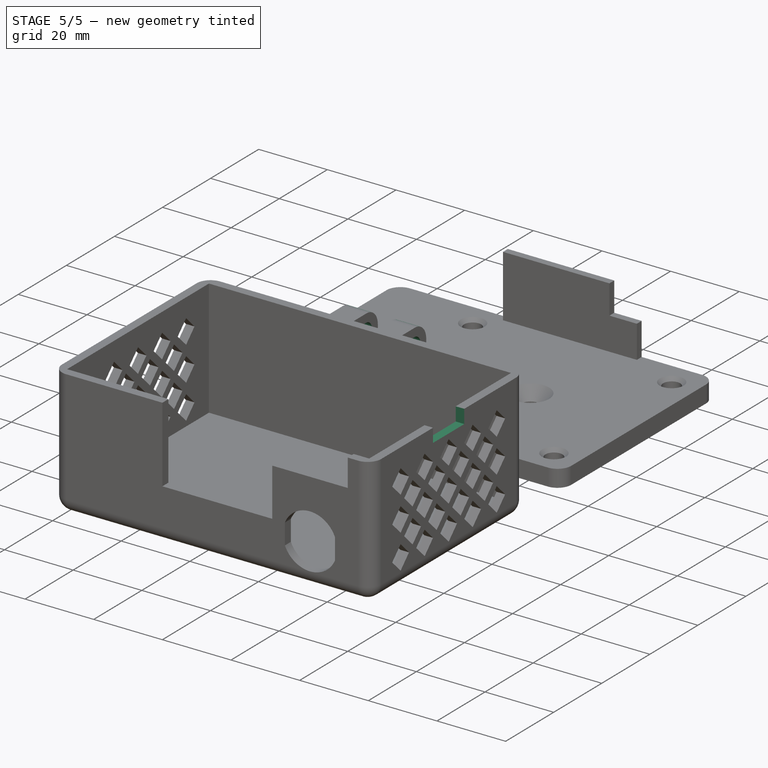
[diagram: stage 5 of 5 — iso view after this stage's code; geometry added in this stage tinted green]
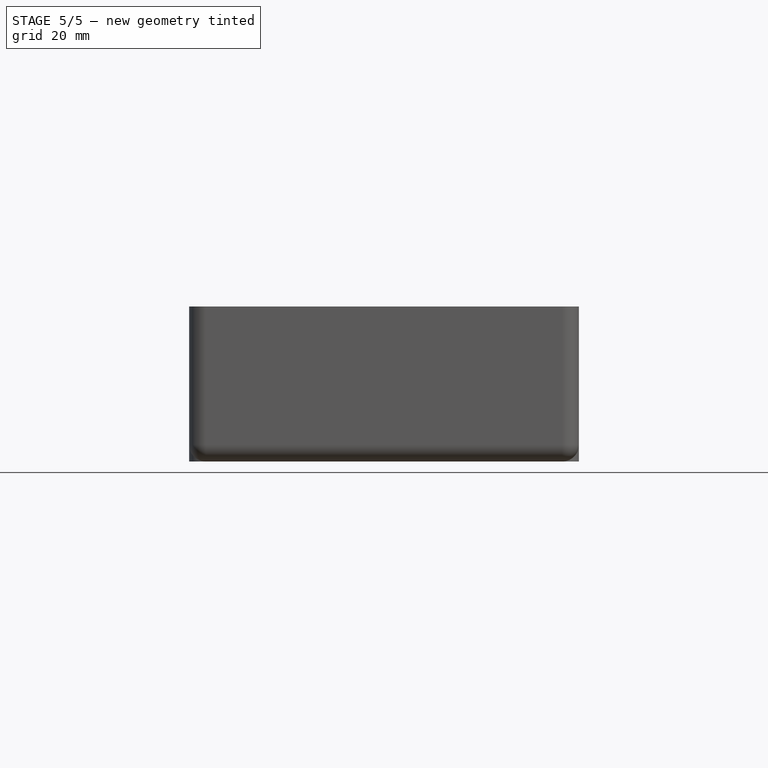
[diagram: stage 5 of 5 — front view after this stage's code; geometry added in this stage tinted green]
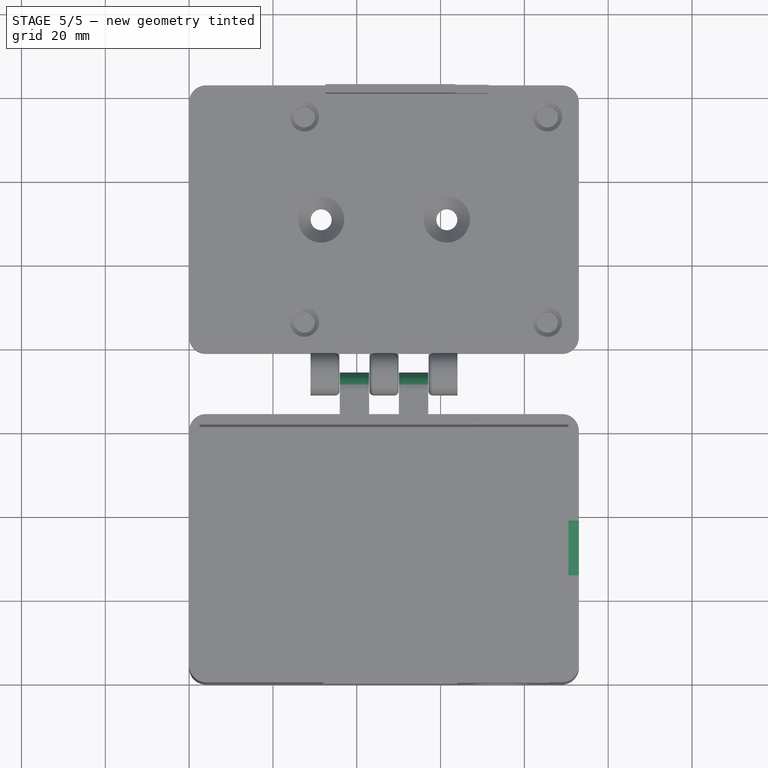
[diagram: stage 5 of 5 — top view after this stage's code; geometry added in this stage tinted green]
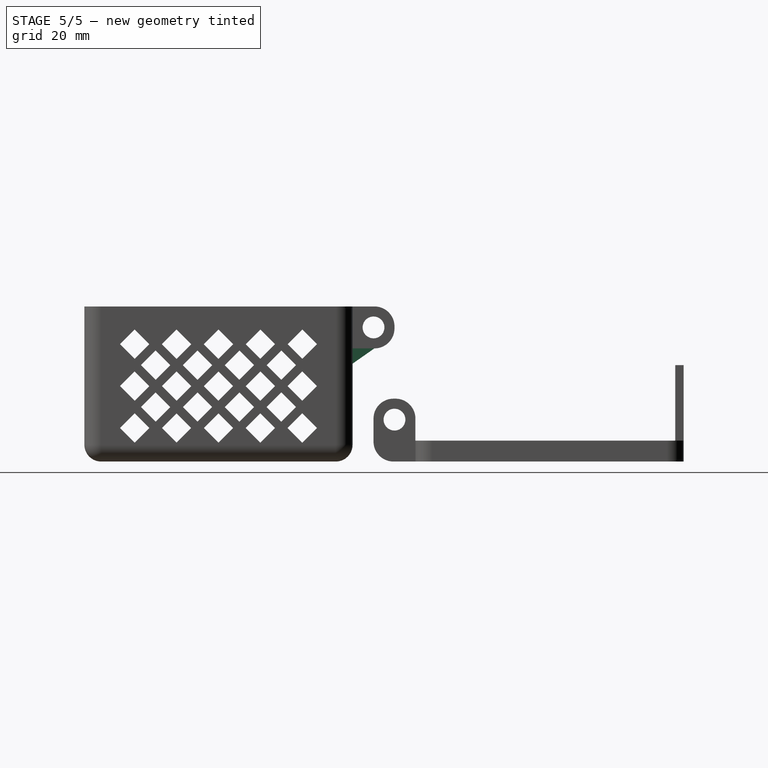
[diagram: stage 5 of 5 — right view after this stage's code; geometry added in this stage tinted green]
FEATURE [PartDesign::Fillet] Fillet003
  Base = -> Pad005 [Edge335,Edge338,Edge560,Edge565]
  BaseFeature = -> Pad005
  Radius = 4.75
  SupportTransform = false
  UseAllEdges = false
FEATURE [PartDesign::Chamfer] Chamfer003
  Angle = 35
  Base = -> Fillet003 [Edge41]
  BaseFeature = -> Fillet003
  ChamferType = 2
  FlipDirection = true
  Size = 5.2
  Size2 = 1
  SupportTransform = false
  UseAllEdges = false
FEATURE [PartDesign::Chamfer] Chamfer004
  Angle = 35
  Base = -> Chamfer003 [Edge8]
  BaseFeature = -> Chamfer003
  ChamferType = 2
  FlipDirection = true
  Size = 5.2
  Size2 = 1
  SupportTransform = false
  UseAllEdges = false
FEATURE [Sketcher::SketchObject] Sketch013
  FullyConstrained = true
  MapMode = 5
  Placement = pos=(35.95,0,0) rot=(0.57735,-0.57735,-0.57735;2.0944rad)
  Support = -> [Chamfer004]
  expr: Constraints[2] = Sketch.Constraints.case_width + 5mm
  sketch-geometry (1):
    g0: Circle CenterX=-69 CenterY=32 CenterZ=0 NormalX=0 NormalY=0 NormalZ=1 AngleXU=0 Radius=2.6
  constraints (3):
    c: DistanceY(g-1,g0) = 32
    c: Diameter(g0) = 5.2
    c: DistanceX(g0,g-1) = 69
FEATURE [PartDesign::Pocket] Pocket007
  BaseFeature = -> Chamfer004
  Direction = (1,0,0)
  Length = 5
  Length2 = 5
  Profile = -> Sketch013
  ReferenceAxis = -> Sketch013 [N_Axis]
  Type = 1
FEATURE [Sketcher::SketchObject] Sketch015
  FullyConstrained = true
  MapMode = 5
  Placement = pos=(0,0,37) rot=(0,0,1;0rad)
  Support = -> [Pocket007]
  expr: Constraints[11] = (Sketch.Constraints.case_width - .Constraints.sd_width) / 2
  expr: Constraints[8] = Sketch.Constraints.case_length
  sketch-geometry (4):
    g0: LineSegment StartX=90.5 StartY=38.5 StartZ=0 EndX=93 EndY=38.5 EndZ=0
    g1: LineSegment StartX=93 StartY=38.5 StartZ=0 EndX=93 EndY=25.5 EndZ=0
    g2: LineSegment StartX=93 StartY=25.5 StartZ=0 EndX=90.5 EndY=25.5 EndZ=0
    g3: LineSegment StartX=90.5 StartY=25.5 StartZ=0 EndX=90.5 EndY=38.5 EndZ=0
  constraints (12):
    c: Coincident(g0,g1)
    c: Coincident(g1,g2)
    c: Coincident(g2,g3)
    c: Coincident(g3,g0)
    c: Horizontal(g0)
    c: Horizontal(g2)
    c: Vertical(g1)
    c: Vertical(g3)
    c: DistanceX(g-1,g1) = 93
    c: DistanceX(g2,g2) = 2.5
    c: DistanceY(g1,g1) = 13  'sd_width'
    c: DistanceY(g-1,g1) = 25.5
FEATURE [PartDesign::Pocket] Pocket008
  BaseFeature = -> Pocket007
  Direction = (0,0,-1)
  Length = 4
  Length2 = 5
  Profile = -> Sketch015
  ReferenceAxis = -> Sketch015 [N_Axis]
  Type = 0
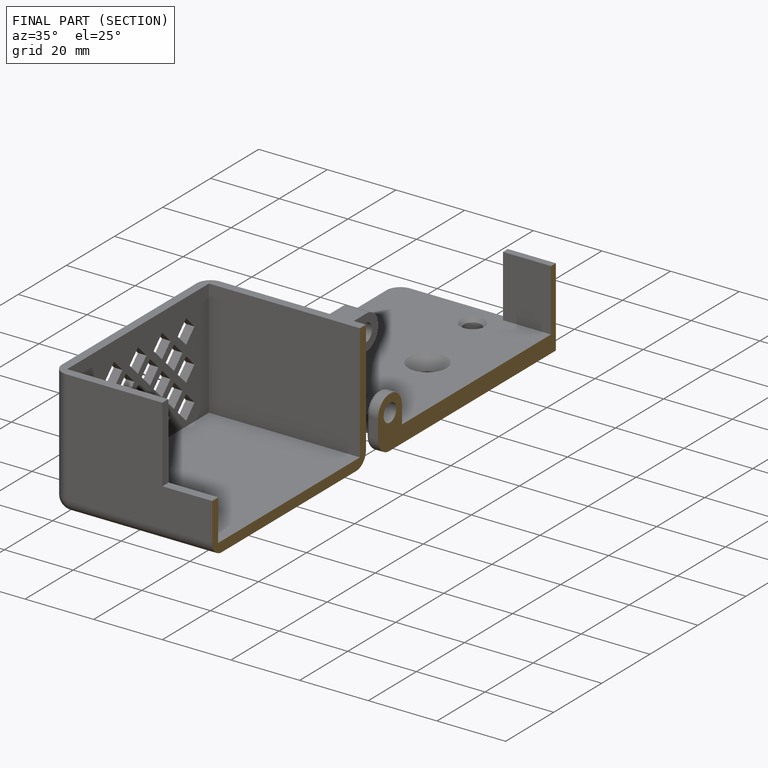
[diagram: finished part — half-section view (interior)]
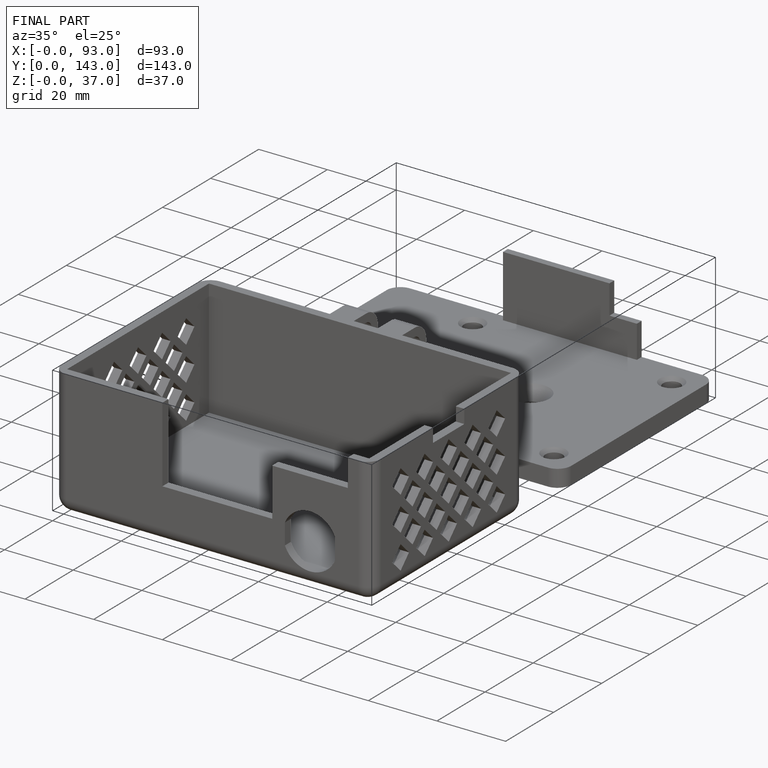
[diagram: finished part — iso view with bounding-box wireframe]
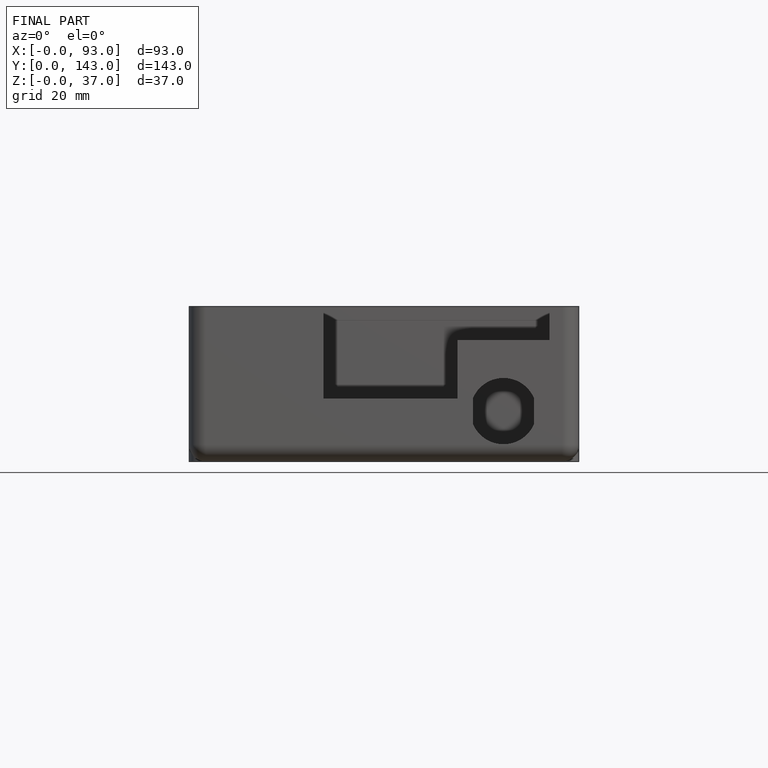
[diagram: finished part — front view with bounding-box wireframe]
